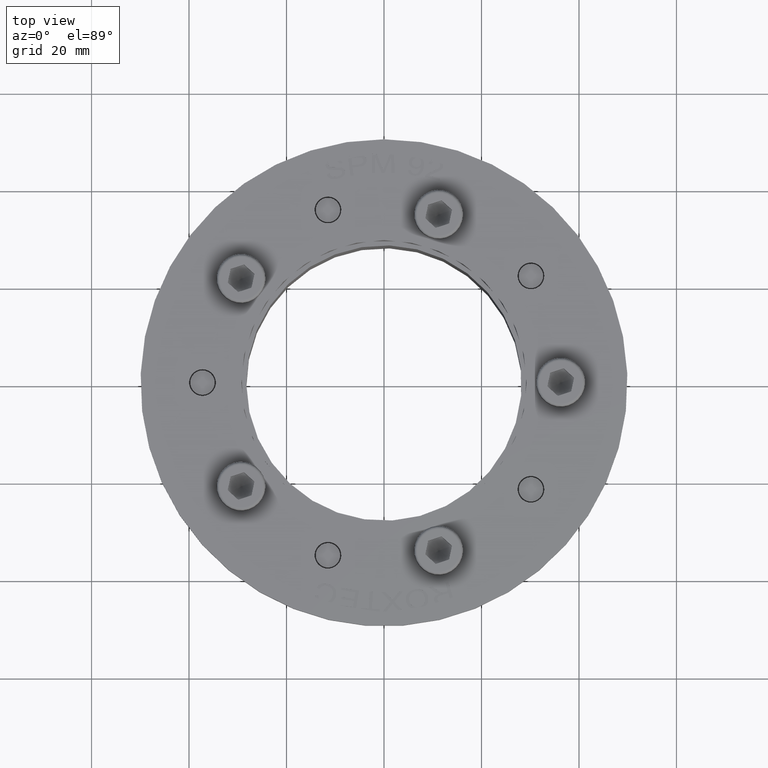
[diagram: clean part render]
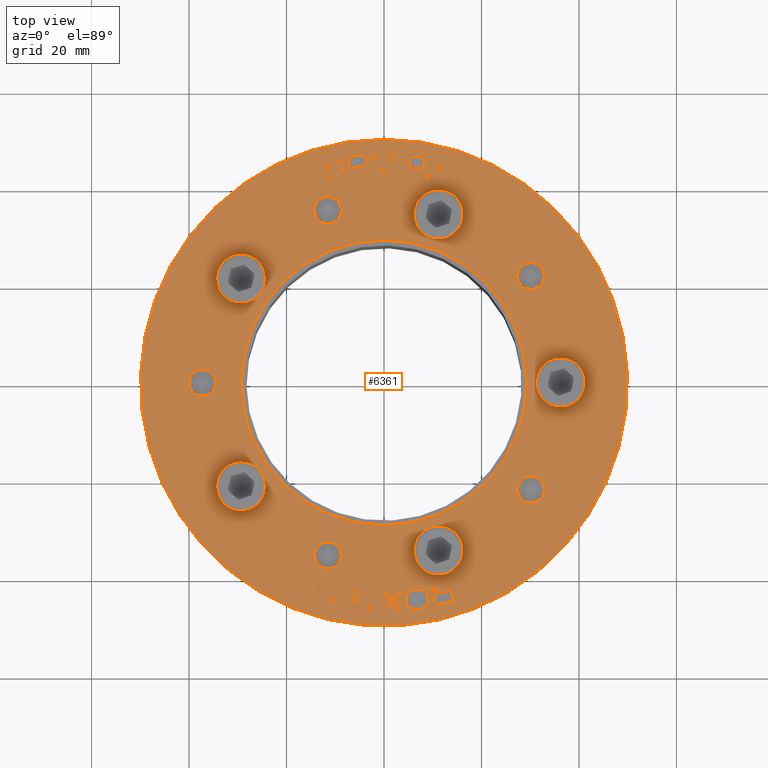
[diagram: same view with one face highlighted and labeled with its STEP entity id]
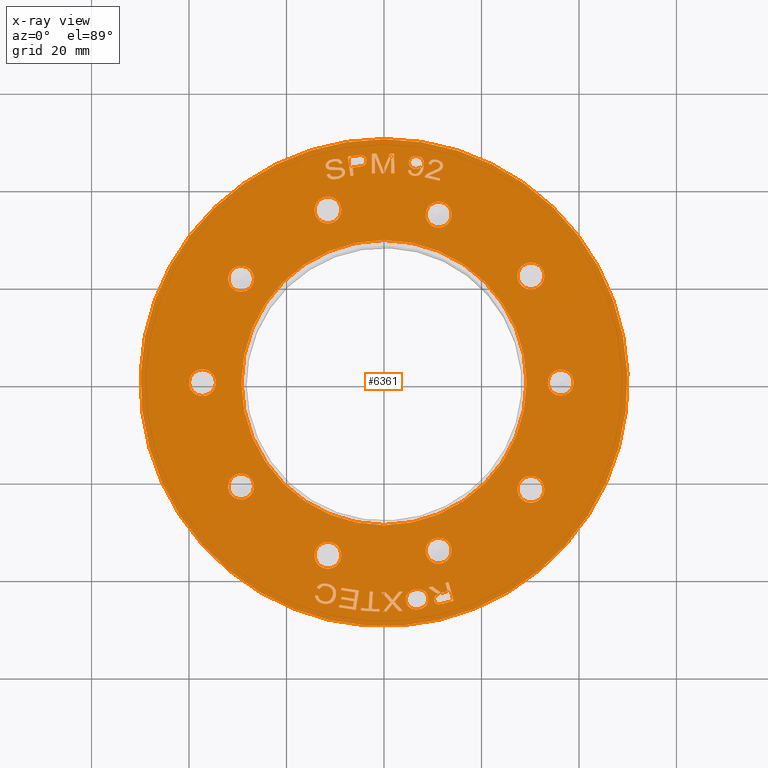
[diagram: x-ray of the same camera — body ghosted, the highlighted face saturated]
A machine part, top view. The second image highlights one B-rep face of the part: STEP entity #6361.
The next image is the same camera in x-ray: the body ghosted, the highlighted face saturated — about 0% of this face is hidden behind the body in this view.
In plain terms, the highlighted planar face has unit normal (0, 0, 1).
Its self-contained STEP definition (entity closure, byte-faithful):
#2977=CARTESIAN_POINT('',(42.942256137040616,-0.999999999999991,-1.867385374601689));
#2978=VERTEX_POINT('',#2977);
#2979=CARTESIAN_POINT('',(42.939580579080463,-0.999999999999991,-2.480184420897977));
#2980=VERTEX_POINT('',#2979);
#2981=CARTESIAN_POINT('',(42.942256137040609,-0.999999999999991,-1.867385374601689));
#2982=DIRECTION('',(-0.004366084566433,0.0,-0.999990468607356));
#2983=VECTOR('',#2982,0.612804887180283);
#2984=LINE('',#2981,#2983);
#2985=EDGE_CURVE('',#2978,#2980,#2984,.T.);
#3017=CARTESIAN_POINT('',(46.347711533622501,-0.999999999999991,-1.882254022569327));
#3018=VERTEX_POINT('',#3017);
#3019=CARTESIAN_POINT('',(46.347711533622501,-0.999999999999991,-1.882254022569327));
#3020=DIRECTION('',(-0.999990468607356,0.0,0.00436608456644));
#3021=VECTOR('',#3020,3.405487855623769);
#3022=LINE('',#3019,#3021);
#3023=EDGE_CURVE('',#3018,#2978,#3022,.T.);
#3048=CARTESIAN_POINT('',(42.948299437109831,-0.999999999999991,-0.48325220535534));
#3049=VERTEX_POINT('',#3048);
#3050=CARTESIAN_POINT('',(42.948299437109839,-0.999999999999991,-0.483252205355344));
#3051=DIRECTION('',(0.924750497504952,0.0,-0.380573931535443));
#3052=VECTOR('',#3051,3.676031649276792);
#3053=LINE('',#3050,#3052);
#3054=EDGE_CURVE('',#3049,#3018,#3053,.T.);
#3079=CARTESIAN_POINT('',(42.950801949032765,-0.999999999999991,0.089913071777508));
#3080=VERTEX_POINT('',#3079);
#3081=CARTESIAN_POINT('',(42.950801949032758,-0.999999999999991,0.089913071777508));
#3082=DIRECTION('',(-0.00436608456643,0.0,-0.999990468607356));
#3083=VECTOR('',#3082,0.573170740248225);
#3084=LINE('',#3081,#3083);
#3085=EDGE_CURVE('',#3080,#3049,#3084,.T.);
#3110=CARTESIAN_POINT('',(46.304427612610269,-0.999999999999991,1.471625512391679));
#3111=VERTEX_POINT('',#3110);
#3112=CARTESIAN_POINT('',(46.304427612610276,-0.999999999999991,1.471625512391681));
#3113=DIRECTION('',(-0.924599672851475,0.0,-0.38094021179569));
#3114=VECTOR('',#3113,3.62711102117838);
#3115=LINE('',#3112,#3114);
#3116=EDGE_CURVE('',#3111,#3080,#3115,.T.);
#3141=CARTESIAN_POINT('',(42.956898494036508,-0.999999999999991,1.486241246920299));
#3142=VERTEX_POINT('',#3141);
#3143=CARTESIAN_POINT('',(42.956898494036516,-0.999999999999991,1.486241246920299));
#3144=DIRECTION('',(0.999990468607356,0.0,-0.004366084566441));
#3145=VECTOR('',#3144,3.347561025492302);
#3146=LINE('',#3143,#3145);
#3147=EDGE_CURVE('',#3142,#3111,#3146,.T.);
#3172=CARTESIAN_POINT('',(42.959574051996661,-0.999999999999991,2.099040293216588));
#3173=VERTEX_POINT('',#3172);
#3174=CARTESIAN_POINT('',(42.959574051996661,-0.999999999999991,2.099040293216588));
#3175=DIRECTION('',(-0.004366084566433,0.0,-0.999990468607356));
#3176=VECTOR('',#3175,0.612804887180283);
#3177=LINE('',#3174,#3176);
#3178=EDGE_CURVE('',#3173,#3142,#3177,.T.);
#3203=CARTESIAN_POINT('',(46.959535986030161,-0.999999999999991,2.081575954690589));
#3204=VERTEX_POINT('',#3203);
#3205=CARTESIAN_POINT('',(46.959535986030161,-0.999999999999991,2.081575954690589));
#3206=DIRECTION('',(-0.999990468607356,0.0,0.00436608456644));
#3207=VECTOR('',#3206,4.000000059604646);
#3208=LINE('',#3205,#3207);
#3209=EDGE_CURVE('',#3204,#3173,#3208,.T.);
#3234=CARTESIAN_POINT('',(46.955822151846661,-0.999999999999991,1.230974293413647));
#3235=VERTEX_POINT('',#3234);
#3236=CARTESIAN_POINT('',(46.955822151846661,-0.999999999999991,1.230974293413647));
#3237=DIRECTION('',(0.004366084566439,0.0,0.999990468607356));
#3238=VECTOR('',#3237,0.850609768772635);
#3239=LINE('',#3236,#3238);
#3240=EDGE_CURVE('',#3235,#3204,#3239,.T.);
#3265=CARTESIAN_POINT('',(44.167280409670283,-0.999999999999991,0.090699392506322));
#3266=VERTEX_POINT('',#3265);
#3267=CARTESIAN_POINT('',(44.167280409670283,-0.999999999999991,0.090699392506318));
#3268=DIRECTION('',(0.925604196858204,0.0,0.378492893933927));
#3269=VECTOR('',#3268,3.012671886797379);
#3270=LINE('',#3267,#3269);
#3271=EDGE_CURVE('',#3266,#3235,#3270,.T.);
#3298=CARTESIAN_POINT('',(43.525924456481846,-0.999999999999991,-0.162600372256154));
#3299=VERTEX_POINT('',#3298);
#3300=CARTESIAN_POINT('',(43.525924456481846,-0.999999999999991,-0.162600372256154));
#3301=CARTESIAN_POINT('',(43.742731903218171,-0.999999999999991,-0.084277931517187));
#3302=CARTESIAN_POINT('',(44.167280409670283,-0.999999999999991,0.090699392506322));
#3303=QUASI_UNIFORM_CURVE('',2,(#3300,#3301,#3302),.UNSPECIFIED.,.F.,.U.);
#3304=EDGE_CURVE('',#3299,#3266,#3303,.T.);
#3331=CARTESIAN_POINT('',(44.116370588703276,-0.999999999999991,-0.396887863613307));
#3332=VERTEX_POINT('',#3331);
#3333=CARTESIAN_POINT('',(44.116370588703276,-0.999999999999991,-0.396887863613307));
#3334=CARTESIAN_POINT('',(43.720725081217758,-0.999999999999991,-0.236622326587304));
#3335=CARTESIAN_POINT('',(43.525924456481846,-0.999999999999991,-0.162600372256154));
#3336=QUASI_UNIFORM_CURVE('',2,(#3333,#3334,#3335),.UNSPECIFIED.,.F.,.U.);
#3337=EDGE_CURVE('',#3332,#3299,#3336,.T.);
#3362=CARTESIAN_POINT('',(46.943708929240977,-0.999999999999991,-1.543389548027268));
#3363=VERTEX_POINT('',#3362);
#3364=CARTESIAN_POINT('',(46.943708929240969,-0.999999999999991,-1.543389548027266));
#3365=DIRECTION('',(-0.926706918255092,0.0,0.375784895463016));
#3366=VECTOR('',#3365,3.050952016049817);
#3367=LINE('',#3364,#3366);
#3368=EDGE_CURVE('',#3363,#3332,#3367,.T.);
#3393=CARTESIAN_POINT('',(46.939542513113963,-0.999999999999991,-2.497648759423976));
#3394=VERTEX_POINT('',#3393);
#3395=CARTESIAN_POINT('',(46.939542513113956,-0.999999999999991,-2.497648759423976));
#3396=DIRECTION('',(0.004366084566443,0.0,0.999990468607356));
#3397=VECTOR('',#3396,0.95426830690263);
#3398=LINE('',#3395,#3397);
#3399=EDGE_CURVE('',#3394,#3363,#3398,.T.);
#3424=CARTESIAN_POINT('',(42.939580579080463,-0.999999999999991,-2.480184420897977));
#3425=DIRECTION('',(0.999990468607356,0.0,-0.00436608456644));
#3426=VECTOR('',#3425,4.000000059604646);
#3427=LINE('',#3424,#3426);
#3428=EDGE_CURVE('',#2980,#3394,#3427,.T.);
#3669=CARTESIAN_POINT('',(42.504008988835871,-0.999999999999991,-6.267625546338094));
#3670=VERTEX_POINT('',#3669);
#3671=CARTESIAN_POINT('',(42.427331917522721,-0.999999999999991,-6.897119169110413));
#3672=VERTEX_POINT('',#3671);
#3673=CARTESIAN_POINT('',(42.504008988835885,-0.999999999999991,-6.267625546338094));
#3674=DIRECTION('',(-0.120913841422826,0.0,-0.992663005733756));
#3675=VECTOR('',#3674,0.634146350912927);
#3676=LINE('',#3673,#3675);
#3677=EDGE_CURVE('',#3670,#3672,#3676,.T.);
#3709=CARTESIAN_POINT('',(44.117086397189951,-0.999999999999991,-6.464110541578041));
#3710=VERTEX_POINT('',#3709);
#3711=CARTESIAN_POINT('',(44.117086397189944,-0.999999999999991,-6.464110541578041));
#3712=DIRECTION('',(-0.992663005733756,0.0,0.120913841422826));
#3713=VECTOR('',#3712,1.625000024214387);
#3714=LINE('',#3711,#3713);
#3715=EDGE_CURVE('',#3710,#3670,#3714,.T.);
#3740=CARTESIAN_POINT('',(44.265648222859191,-0.999999999999991,-5.244466647456658));
#3741=VERTEX_POINT('',#3740);
#3742=CARTESIAN_POINT('',(44.265648222859184,-0.999999999999991,-5.244466647456656));
#3743=DIRECTION('',(-0.12091384142283,0.0,-0.992663005733756));
#3744=VECTOR('',#3743,1.228658554893812);
#3745=LINE('',#3742,#3744);
#3746=EDGE_CURVE('',#3741,#3710,#3745,.T.);
#3775=CARTESIAN_POINT('',(45.690315292520722,-0.999999999999991,-3.608997453423247));
#3776=VERTEX_POINT('',#3775);
#3777=CARTESIAN_POINT('',(45.690315292520729,-0.999999999999991,-3.608997453423246));
#3778=CARTESIAN_POINT('',(45.184904547314105,-0.999999999999991,-3.547434612513163));
#3779=CARTESIAN_POINT('',(44.388773904679333,-0.999999999999991,-4.233645157043409));
#3780=CARTESIAN_POINT('',(44.265648222859184,-0.999999999999991,-5.244466647456658));
#3781=QUASI_UNIFORM_CURVE('',2,(#3777,#3778,#3779,#3780),.UNSPECIFIED.,.F.,.U.);
#3782=EDGE_CURVE('',#3776,#3741,#3781,.T.);
#3814=CARTESIAN_POINT('',(46.66534893345441,-0.999999999999991,-4.858007733962379));
#3815=VERTEX_POINT('',#3814);
#3816=CARTESIAN_POINT('',(46.66534893345441,-0.999999999999991,-4.85800773396238));
#3817=CARTESIAN_POINT('',(46.659688559935013,-0.999999999999991,-4.501045746546035));
#3818=CARTESIAN_POINT('',(46.44518795487086,-0.999999999999991,-3.992721538885276));
#3819=CARTESIAN_POINT('',(45.986903634019228,-0.999999999999991,-3.645124150484245));
#3820=CARTESIAN_POINT('',(45.690315292520729,-0.999999999999991,-3.608997453423246));
#3821=QUASI_UNIFORM_CURVE('',2,(#3816,#3817,#3818,#3819,#3820),.UNSPECIFIED.,.F.,.U.);
#3822=EDGE_CURVE('',#3815,#3776,#3821,.T.);
#3851=CARTESIAN_POINT('',(46.616587380820732,-0.999999999999991,-5.586112434778041));
#3852=VERTEX_POINT('',#3851);
#3853=CARTESIAN_POINT('',(46.616587380820732,-0.999999999999991,-5.586112434778041));
#3854=CARTESIAN_POINT('',(46.67446382407153,-0.999999999999991,-5.110965806050851));
#3855=CARTESIAN_POINT('',(46.66534893345441,-0.999999999999991,-4.85800773396238));
#3856=QUASI_UNIFORM_CURVE('',2,(#3853,#3854,#3855),.UNSPECIFIED.,.F.,.U.);
#3857=EDGE_CURVE('',#3852,#3815,#3856,.T.);
#3882=CARTESIAN_POINT('',(46.397983999625069,-0.999999999999991,-7.380774542008748));
#3883=VERTEX_POINT('',#3882);
#3884=CARTESIAN_POINT('',(46.397983999625083,-0.999999999999991,-7.380774542008749));
#3885=DIRECTION('',(0.120913841422826,0.0,0.992663005733756));
#3886=VECTOR('',#3885,1.807926856208497);
#3887=LINE('',#3884,#3886);
#3888=EDGE_CURVE('',#3883,#3852,#3887,.T.);
#3913=CARTESIAN_POINT('',(42.427331917522721,-0.999999999999991,-6.897119169110414));
#3914=DIRECTION('',(0.992663005733756,0.0,-0.120913841422827));
#3915=VECTOR('',#3914,4.000000059604634);
#3916=LINE('',#3913,#3915);
#3917=EDGE_CURVE('',#3672,#3883,#3916,.T.);
#3965=CARTESIAN_POINT('',(41.824809856961863,-0.999999999999991,-9.467985012987521));
#3966=VERTEX_POINT('',#3965);
#3967=CARTESIAN_POINT('',(42.688881047306623,-0.999999999999991,-11.758373635295779));
#3968=VERTEX_POINT('',#3967);
#3969=CARTESIAN_POINT('',(41.824809856961863,-0.999999999999991,-9.467985012987521));
#3970=CARTESIAN_POINT('',(41.679812935340728,-0.999999999999991,-10.100980742960433));
#3971=CARTESIAN_POINT('',(41.79282909726701,-0.999999999999991,-11.027658912353836));
#3972=CARTESIAN_POINT('',(42.299324950264662,-0.999999999999991,-11.656629144338586));
#3973=CARTESIAN_POINT('',(42.688881047306623,-0.999999999999991,-11.758373635295779));
#3974=QUASI_UNIFORM_CURVE('',2,(#3969,#3970,#3971,#3972,#3973),.UNSPECIFIED.,.F.,.U.);
#3975=EDGE_CURVE('',#3966,#3968,#3974,.T.);
#4015=CARTESIAN_POINT('',(43.38823959095825,-0.999999999999991,-8.008892388963327));
#4016=VERTEX_POINT('',#4015);
#4017=CARTESIAN_POINT('',(43.38823959095825,-0.999999999999991,-8.008892388963327));
#4018=CARTESIAN_POINT('',(43.076199442380059,-0.999999999999991,-7.937415033234601));
#4019=CARTESIAN_POINT('',(42.428388330838125,-0.999999999999991,-8.239419515000757));
#4020=CARTESIAN_POINT('',(41.939854362849047,-0.999999999999991,-8.965748964323579));
#4021=CARTESIAN_POINT('',(41.824809856961863,-0.999999999999991,-9.467985012987521));
#4022=QUASI_UNIFORM_CURVE('',2,(#4017,#4018,#4019,#4020,#4021),.UNSPECIFIED.,.F.,.U.);
#4023=EDGE_CURVE('',#4016,#3966,#4022,.T.);
#4054=CARTESIAN_POINT('',(44.156781650098473,-0.999999999999991,-9.023173471364743));
#4055=VERTEX_POINT('',#4054);
#4056=CARTESIAN_POINT('',(44.156781650098473,-0.999999999999991,-9.023173471364743));
#4057=CARTESIAN_POINT('',(44.092536601147913,-0.999999999999991,-8.579956326518694));
#4058=CARTESIAN_POINT('',(43.700279739536441,-0.999999999999991,-8.080369744692053));
#4059=CARTESIAN_POINT('',(43.38823959095825,-0.999999999999991,-8.008892388963327));
#4060=QUASI_UNIFORM_CURVE('',2,(#4056,#4057,#4058,#4059),.UNSPECIFIED.,.F.,.U.);
#4061=EDGE_CURVE('',#4055,#4016,#4060,.T.);
#4091=CARTESIAN_POINT('',(44.232825213542768,-0.999999999999991,-11.108030901594946));
#4092=VERTEX_POINT('',#4091);
#4093=CARTESIAN_POINT('',(44.232825213542775,-0.999999999999991,-11.108030901594947));
#4094=CARTESIAN_POINT('',(44.139937924568535,-0.999999999999991,-10.899089092809371));
#4095=CARTESIAN_POINT('',(44.19909685538024,-0.999999999999991,-9.330002032518671));
#4096=CARTESIAN_POINT('',(44.156781650098473,-0.999999999999991,-9.023173471364743));
#4097=QUASI_UNIFORM_CURVE('',2,(#4093,#4094,#4095,#4096),.UNSPECIFIED.,.F.,.U.);
#4098=EDGE_CURVE('',#4092,#4055,#4097,.T.);
#4126=CARTESIAN_POINT('',(44.539002153392261,-0.999999999999991,-11.368957565247616));
#4127=VERTEX_POINT('',#4126);
#4128=CARTESIAN_POINT('',(44.539002153392261,-0.999999999999991,-11.368957565247616));
#4129=CARTESIAN_POINT('',(44.328003576734631,-0.999999999999991,-11.320625258040572));
#4130=CARTESIAN_POINT('',(44.232825213542775,-0.999999999999991,-11.108030901594947));
#4131=QUASI_UNIFORM_CURVE('',2,(#4128,#4129,#4130),.UNSPECIFIED.,.F.,.U.);
#4132=EDGE_CURVE('',#4127,#4092,#4131,.T.);
#4161=CARTESIAN_POINT('',(45.370194864706299,-0.999999999999991,-10.430238950407904));
#4162=VERTEX_POINT('',#4161);
#4163=CARTESIAN_POINT('',(45.370194864706299,-0.999999999999991,-10.430238950407906));
#4164=CARTESIAN_POINT('',(45.241535624394594,-0.999999999999991,-10.99191121784866));
#4165=CARTESIAN_POINT('',(44.779718839438296,-0.999999999999991,-11.424097239666917));
#4166=CARTESIAN_POINT('',(44.539002153392261,-0.999999999999991,-11.368957565247616));
#4167=QUASI_UNIFORM_CURVE('',2,(#4163,#4164,#4165,#4166),.UNSPECIFIED.,.F.,.U.);
#4168=EDGE_CURVE('',#4162,#4127,#4167,.T.);
#4198=CARTESIAN_POINT('',(44.881339935626968,-0.999999999999991,-9.123461518022111));
#4199=VERTEX_POINT('',#4198);
#4200=CARTESIAN_POINT('',(44.881339935626968,-0.999999999999991,-9.123461518022111));
#4201=CARTESIAN_POINT('',(45.241924515442342,-0.999999999999991,-9.256102583196796));
#4202=CARTESIAN_POINT('',(45.493408211248209,-0.999999999999991,-9.892341170477881));
#4203=CARTESIAN_POINT('',(45.370194864706299,-0.999999999999991,-10.430238950407906));
#4204=QUASI_UNIFORM_CURVE('',2,(#4200,#4201,#4202,#4203),.UNSPECIFIED.,.F.,.U.);
#4205=EDGE_CURVE('',#4199,#4162,#4204,.T.);
#4231=CARTESIAN_POINT('',(45.056120822077077,-0.999999999999991,-8.537948907630067));
#4232=VERTEX_POINT('',#4231);
#4233=CARTESIAN_POINT('',(45.056120822077069,-0.999999999999991,-8.537948907630065));
#4234=DIRECTION('',(-0.286037033172066,0.0,-0.958218563613815));
#4235=VECTOR('',#4234,0.611042858723012);
#4236=LINE('',#4233,#4235);
#4237=EDGE_CURVE('',#4232,#4199,#4236,.T.);
#4268=CARTESIAN_POINT('',(45.818755307857771,-0.999999999999991,-10.561137967205045));
#4269=VERTEX_POINT('',#4268);
#4270=CARTESIAN_POINT('',(45.818755307857785,-0.999999999999991,-10.561137967205045));
#4271=CARTESIAN_POINT('',(45.937884234072328,-0.999999999999991,-10.041071052908057));
#4272=CARTESIAN_POINT('',(45.8402907103887,-0.999999999999991,-9.183608280442552));
#4273=CARTESIAN_POINT('',(45.394475396437535,-0.999999999999991,-8.631092685265243));
#4274=CARTESIAN_POINT('',(45.056120822077077,-0.999999999999991,-8.537948907630067));
#4275=QUASI_UNIFORM_CURVE('',2,(#4270,#4271,#4272,#4273,#4274),.UNSPECIFIED.,.F.,.U.);
#4276=EDGE_CURVE('',#4269,#4232,#4275,.T.);
#4309=CARTESIAN_POINT('',(44.366512341159762,-0.999999999999991,-11.95812272329974));
#4310=VERTEX_POINT('',#4309);
#4311=CARTESIAN_POINT('',(44.366512341159762,-0.999999999999991,-11.958122723299738));
#4312=CARTESIAN_POINT('',(44.663693435043754,-0.999999999999991,-12.026196395422332));
#4313=CARTESIAN_POINT('',(45.266744373889729,-0.999999999999991,-11.742088634729804));
#4314=CARTESIAN_POINT('',(45.711198905904084,-0.999999999999991,-11.03068409554175));
#4315=CARTESIAN_POINT('',(45.818755307857785,-0.999999999999991,-10.561137967205045));
#4316=QUASI_UNIFORM_CURVE('',2,(#4311,#4312,#4313,#4314,#4315),.UNSPECIFIED.,.F.,.U.);
#4317=EDGE_CURVE('',#4310,#4269,#4316,.T.);
#4348=CARTESIAN_POINT('',(43.671350512423771,-0.999999999999991,-11.101398918389025));
#4349=VERTEX_POINT('',#4348);
#4350=CARTESIAN_POINT('',(43.671350512423771,-0.999999999999991,-11.101398918389025));
#4351=CARTESIAN_POINT('',(43.740726735649616,-0.999999999999991,-11.467597842879167));
#4352=CARTESIAN_POINT('',(44.099049356664167,-0.999999999999991,-11.896856418389401));
#4353=CARTESIAN_POINT('',(44.366512341159762,-0.999999999999991,-11.958122723299738));
#4354=QUASI_UNIFORM_CURVE('',2,(#4350,#4351,#4352,#4353),.UNSPECIFIED.,.F.,.U.);
#4355=EDGE_CURVE('',#4349,#4310,#4354,.T.);
#4385=CARTESIAN_POINT('',(43.631363812889035,-0.999999999999991,-9.268764843025119));
#4386=VERTEX_POINT('',#4385);
#4387=CARTESIAN_POINT('',(43.631363812889035,-0.999999999999991,-9.268764843025119));
#4388=CARTESIAN_POINT('',(43.650885429167445,-0.999999999999991,-9.47028440331778));
#4389=CARTESIAN_POINT('',(43.614673980555672,-0.999999999999991,-10.816302634582136));
#4390=CARTESIAN_POINT('',(43.671350512423771,-0.999999999999991,-11.101398918389025));
#4391=QUASI_UNIFORM_CURVE('',2,(#4387,#4388,#4389,#4390),.UNSPECIFIED.,.F.,.U.);
#4392=EDGE_CURVE('',#4386,#4349,#4391,.T.);
#4422=CARTESIAN_POINT('',(43.206834345909222,-0.999999999999991,-8.596015336851771));
#4423=VERTEX_POINT('',#4422);
#4424=CARTESIAN_POINT('',(43.206834345909229,-0.999999999999991,-8.596015336851771));
#4425=CARTESIAN_POINT('',(43.391086624117307,-0.999999999999991,-8.63822101356778));
#4426=CARTESIAN_POINT('',(43.605949872465146,-0.999999999999991,-8.956424532660808));
#4427=CARTESIAN_POINT('',(43.631363812889035,-0.999999999999991,-9.268764843025119));
#4428=QUASI_UNIFORM_CURVE('',2,(#4424,#4425,#4426,#4427),.UNSPECIFIED.,.F.,.U.);
#4429=EDGE_CURVE('',#4423,#4386,#4428,.T.);
#4461=CARTESIAN_POINT('',(42.27863318526979,-0.999999999999991,-9.603217314165949));
#4462=VERTEX_POINT('',#4461);
#4463=CARTESIAN_POINT('',(42.278633185269797,-0.999999999999991,-9.603217314165949));
#4464=CARTESIAN_POINT('',(42.359640855095684,-0.999999999999991,-9.249571812444003));
#4465=CARTESIAN_POINT('',(42.658871783750371,-0.999999999999991,-8.748865688127467));
#4466=CARTESIAN_POINT('',(43.025553878639997,-0.999999999999991,-8.554490396856984));
#4467=CARTESIAN_POINT('',(43.206834345909229,-0.999999999999991,-8.596015336851771));
#4468=QUASI_UNIFORM_CURVE('',2,(#4463,#4464,#4465,#4466,#4467),.UNSPECIFIED.,.F.,.U.);
#4469=EDGE_CURVE('',#4462,#4423,#4468,.T.);
#4502=CARTESIAN_POINT('',(42.863910797810675,-0.999999999999991,-11.18542900538031));
#4503=VERTEX_POINT('',#4502);
#4504=CARTESIAN_POINT('',(42.863910797810675,-0.999999999999991,-11.18542900538031));
#4505=CARTESIAN_POINT('',(42.579231828962676,-0.999999999999991,-11.076430716835182));
#4506=CARTESIAN_POINT('',(42.274218796233896,-0.999999999999991,-10.687533174199032));
#4507=CARTESIAN_POINT('',(42.188095201346734,-0.999999999999991,-9.998468169031668));
#4508=CARTESIAN_POINT('',(42.278633185269797,-0.999999999999991,-9.603217314165949));
#4509=QUASI_UNIFORM_CURVE('',2,(#4504,#4505,#4506,#4507,#4508),.UNSPECIFIED.,.F.,.U.);
#4510=EDGE_CURVE('',#4503,#4462,#4509,.T.);
#4537=CARTESIAN_POINT('',(42.688881047306637,-0.999999999999991,-11.758373635295785));
#4538=DIRECTION('',(0.292162560632079,0.0,0.956368672722453));
#4539=VECTOR('',#4538,0.599083435349773);
#4540=LINE('',#4537,#4539);
#4541=EDGE_CURVE('',#3968,#4503,#4540,.T.);
#4735=CARTESIAN_POINT('',(42.441505981402315,-0.999999999999991,6.138916910177903));
#4736=VERTEX_POINT('',#4735);
#4737=CARTESIAN_POINT('',(43.6222241787328,-0.999999999999991,4.95162281715114));
#4738=VERTEX_POINT('',#4737);
#4739=CARTESIAN_POINT('',(42.441505981402315,-0.999999999999991,6.138916910177903));
#4740=CARTESIAN_POINT('',(42.524192694853014,-0.999999999999991,5.580986421954197));
#4741=CARTESIAN_POINT('',(43.144041979827449,-0.999999999999991,4.954724931380925));
#4742=CARTESIAN_POINT('',(43.6222241787328,-0.999999999999991,4.95162281715114));
#4743=QUASI_UNIFORM_CURVE('',2,(#4739,#4740,#4741,#4742),.UNSPECIFIED.,.F.,.U.);
#4744=EDGE_CURVE('',#4736,#4738,#4743,.T.);
#4783=CARTESIAN_POINT('',(44.316037735591337,-0.999999999999991,8.151938520192459));
#4784=VERTEX_POINT('',#4783);
#4785=CARTESIAN_POINT('',(44.316037735591337,-0.999999999999991,8.151938520192461));
#4786=CARTESIAN_POINT('',(43.556045935416343,-0.999999999999991,8.039305807816373));
#4787=CARTESIAN_POINT('',(42.71889244600878,-0.999999999999991,7.511485008615484));
#4788=CARTESIAN_POINT('',(42.36373577523787,-0.999999999999991,6.66367315315588));
#4789=CARTESIAN_POINT('',(42.441505981402315,-0.999999999999991,6.138916910177903));
#4790=QUASI_UNIFORM_CURVE('',2,(#4785,#4786,#4787,#4788,#4789),.UNSPECIFIED.,.F.,.U.);
#4791=EDGE_CURVE('',#4784,#4736,#4790,.T.);
#4824=CARTESIAN_POINT('',(46.469436410170879,-0.999999999999991,6.8067542644462));
#4825=VERTEX_POINT('',#4824);
#4826=CARTESIAN_POINT('',(46.469436410170871,-0.999999999999991,6.8067542644462));
#4827=CARTESIAN_POINT('',(46.40060530816325,-0.999999999999991,7.271193697886478));
#4828=CARTESIAN_POINT('',(45.870892699561352,-0.999999999999991,7.975537360333114));
#4829=CARTESIAN_POINT('',(45.042855290520613,-0.999999999999991,8.259654725282299));
#4830=CARTESIAN_POINT('',(44.316037735591337,-0.999999999999991,8.151938520192461));
#4831=QUASI_UNIFORM_CURVE('',2,(#4826,#4827,#4828,#4829,#4830),.UNSPECIFIED.,.F.,.U.);
#4832=EDGE_CURVE('',#4825,#4784,#4831,.T.);
#4863=CARTESIAN_POINT('',(45.354214951584602,-0.999999999999991,5.118927911791208));
#4864=VERTEX_POINT('',#4863);
#4865=CARTESIAN_POINT('',(45.354214951584609,-0.999999999999991,5.118927911791209));
#4866=CARTESIAN_POINT('',(45.957383046961596,-0.999999999999991,5.208318953359532));
#4867=CARTESIAN_POINT('',(46.564190914233293,-0.999999999999991,6.167396083346599));
#4868=CARTESIAN_POINT('',(46.469436410170871,-0.999999999999991,6.8067542644462));
#4869=QUASI_UNIFORM_CURVE('',2,(#4865,#4866,#4867,#4868),.UNSPECIFIED.,.F.,.U.);
#4870=EDGE_CURVE('',#4864,#4825,#4869,.T.);
#4900=CARTESIAN_POINT('',(43.852138260146781,-0.999999999999991,6.332565789855522));
#4901=VERTEX_POINT('',#4900);
#4902=CARTESIAN_POINT('',(43.852138260146781,-0.999999999999991,6.332565789855522));
#4903=CARTESIAN_POINT('',(43.939741480883747,-0.999999999999991,5.74146105638607));
#4904=CARTESIAN_POINT('',(44.772157739545825,-0.999999999999991,5.032665556677776));
#4905=CARTESIAN_POINT('',(45.354214951584609,-0.999999999999991,5.118927911791209));
#4906=QUASI_UNIFORM_CURVE('',2,(#4902,#4903,#4904,#4905),.UNSPECIFIED.,.F.,.U.);
#4907=EDGE_CURVE('',#4901,#4864,#4906,.T.);
#4937=CARTESIAN_POINT('',(44.206270459707255,-0.999999999999991,7.540829219643976));
#4938=VERTEX_POINT('',#4937);
#4939=CARTESIAN_POINT('',(44.206270459707255,-0.999999999999991,7.540829219643976));
#4940=CARTESIAN_POINT('',(43.999974145041932,-0.999999999999991,7.331494920980841));
#4941=CARTESIAN_POINT('',(43.800291456037151,-0.999999999999991,6.682403285174168));
#4942=CARTESIAN_POINT('',(43.852138260146781,-0.999999999999991,6.332565789855522));
#4943=QUASI_UNIFORM_CURVE('',2,(#4939,#4940,#4941,#4942),.UNSPECIFIED.,.F.,.U.);
#4944=EDGE_CURVE('',#4938,#4901,#4943,.T.);
#4972=CARTESIAN_POINT('',(44.109316609239102,-0.999999999999991,7.529542493469919));
#4973=VERTEX_POINT('',#4972);
#4974=CARTESIAN_POINT('',(44.109316609239102,-0.999999999999991,7.529542493469918));
#4975=CARTESIAN_POINT('',(44.139475014007949,-0.999999999999991,7.534012045548337));
#4976=CARTESIAN_POINT('',(44.206270459707255,-0.999999999999991,7.540829219643976));
#4977=QUASI_UNIFORM_CURVE('',2,(#4974,#4975,#4976),.UNSPECIFIED.,.F.,.U.);
#4978=EDGE_CURVE('',#4973,#4938,#4977,.T.);
#5011=CARTESIAN_POINT('',(42.83780910351976,-0.999999999999991,6.209978359520544));
#5012=VERTEX_POINT('',#5011);
#5013=CARTESIAN_POINT('',(42.83780910351976,-0.999999999999991,6.209978359520543));
#5014=CARTESIAN_POINT('',(42.798030090021854,-0.999999999999991,6.478388161963302));
#5015=CARTESIAN_POINT('',(42.94276828939141,-0.999999999999991,6.915919580475984));
#5016=CARTESIAN_POINT('',(43.248582911089748,-0.999999999999991,7.223218914705152));
#5017=CARTESIAN_POINT('',(43.804716721073724,-0.999999999999991,7.484400017477917));
#5018=CARTESIAN_POINT('',(44.109316609239102,-0.999999999999991,7.529542493469918));
#5019=QUASI_UNIFORM_CURVE('',2,(#5013,#5014,#5015,#5016,#5017,#5018),.UNSPECIFIED.,.F.,.U.);
#5020=EDGE_CURVE('',#5012,#4973,#5019,.T.);
#5052=CARTESIAN_POINT('',(43.581312276750651,-0.999999999999991,5.518826518761513));
#5053=VERTEX_POINT('',#5052);
#5054=CARTESIAN_POINT('',(43.581312276750651,-0.999999999999991,5.518826518761513));
#5055=CARTESIAN_POINT('',(43.241858739781989,-0.999999999999991,5.542488572552022));
#5056=CARTESIAN_POINT('',(42.883845489927452,-0.999999999999991,5.899346790401401));
#5057=CARTESIAN_POINT('',(42.83780910351976,-0.999999999999991,6.209978359520543));
#5058=QUASI_UNIFORM_CURVE('',2,(#5054,#5055,#5056,#5057),.UNSPECIFIED.,.F.,.U.);
#5059=EDGE_CURVE('',#5053,#5012,#5058,.T.);
#5085=CARTESIAN_POINT('',(43.622224178732807,-0.999999999999991,4.951622817151141));
#5086=DIRECTION('',(-0.071942215843775,0.0,0.997408801635261));
#5087=VECTOR('',#5086,0.568677257189266);
#5088=LINE('',#5085,#5087);
#5089=EDGE_CURVE('',#4738,#5053,#5088,.T.);
#5131=CARTESIAN_POINT('',(42.435925696203554,-0.999999999999991,9.242243952120205));
#5132=VERTEX_POINT('',#5131);
#5133=CARTESIAN_POINT('',(41.891300104621649,-0.999999999999991,11.528889826566854));
#5134=VERTEX_POINT('',#5133);
#5135=CARTESIAN_POINT('',(42.435925696203569,-0.999999999999991,9.242243952120209));
#5136=DIRECTION('',(-0.231695449256764,0.0,0.972788373076954));
#5137=VECTOR('',#5136,2.350609791124383);
#5138=LINE('',#5135,#5137);
#5139=EDGE_CURVE('',#5132,#5134,#5138,.T.);
#5175=CARTESIAN_POINT('',(42.967863380935171,-0.999999999999991,10.324828440816527));
#5176=VERTEX_POINT('',#5175);
#5177=CARTESIAN_POINT('',(42.967863380935171,-0.999999999999991,10.324828440816528));
#5178=CARTESIAN_POINT('',(42.731910984213002,-0.999999999999991,9.723303046866949));
#5179=CARTESIAN_POINT('',(42.543817265003867,-0.999999999999991,9.368231233588293));
#5180=CARTESIAN_POINT('',(42.435925696203554,-0.999999999999991,9.242243952120205));
#5181=QUASI_UNIFORM_CURVE('',2,(#5177,#5178,#5179,#5180),.UNSPECIFIED.,.F.,.U.);
#5182=EDGE_CURVE('',#5176,#5132,#5181,.T.);
#5214=CARTESIAN_POINT('',(44.259435849098423,-0.999999999999991,12.086656273173169));
#5215=VERTEX_POINT('',#5214);
#5216=CARTESIAN_POINT('',(44.259435849098416,-0.999999999999991,12.086656273173165));
#5217=CARTESIAN_POINT('',(44.025136206969648,-0.999999999999991,12.03085157572184));
#5218=CARTESIAN_POINT('',(43.628723752541518,-0.999999999999991,11.695112506652009));
#5219=CARTESIAN_POINT('',(43.256909840720674,-0.999999999999991,11.045557758387798));
#5220=CARTESIAN_POINT('',(42.967863380935171,-0.999999999999991,10.324828440816528));
#5221=QUASI_UNIFORM_CURVE('',2,(#5216,#5217,#5218,#5219,#5220),.UNSPECIFIED.,.F.,.U.);
#5222=EDGE_CURVE('',#5215,#5176,#5221,.T.);
#5253=CARTESIAN_POINT('',(45.685124095756926,-0.999999999999991,10.890530769745098));
#5254=VERTEX_POINT('',#5253);
#5255=CARTESIAN_POINT('',(45.685124095756926,-0.999999999999991,10.890530769745098));
#5256=CARTESIAN_POINT('',(45.525480277731624,-0.999999999999991,11.560805695328678));
#5257=CARTESIAN_POINT('',(44.719137678591579,-0.999999999999991,12.196146502349819));
#5258=CARTESIAN_POINT('',(44.259435849098416,-0.999999999999991,12.086656273173165));
#5259=QUASI_UNIFORM_CURVE('',2,(#5255,#5256,#5257,#5258),.UNSPECIFIED.,.F.,.U.);
#5260=EDGE_CURVE('',#5254,#5215,#5259,.T.);
#5290=CARTESIAN_POINT('',(44.92204353918504,-0.999999999999991,9.107276371493768));
#5291=VERTEX_POINT('',#5290);
#5292=CARTESIAN_POINT('',(44.92204353918504,-0.999999999999991,9.107276371493768));
#5293=CARTESIAN_POINT('',(45.456592144815382,-0.999999999999991,9.297274623026301));
#5294=CARTESIAN_POINT('',(45.844061525206897,-0.999999999999991,10.223221662416311));
#5295=CARTESIAN_POINT('',(45.685124095756926,-0.999999999999991,10.890530769745098));
#5296=QUASI_UNIFORM_CURVE('',2,(#5292,#5293,#5294,#5295),.UNSPECIFIED.,.F.,.U.);
#5297=EDGE_CURVE('',#5291,#5254,#5296,.T.);
#5323=CARTESIAN_POINT('',(44.731759690937558,-0.999999999999991,9.682499780162427));
#5324=VERTEX_POINT('',#5323);
#5325=CARTESIAN_POINT('',(44.731759690937565,-0.999999999999991,9.682499780162431));
#5326=DIRECTION('',(0.314062223087387,0.0,-0.949402401529198));
#5327=VECTOR('',#5326,0.605879454004066);
#5328=LINE('',#5325,#5327);
#5329=EDGE_CURVE('',#5324,#5291,#5328,.T.);
#5358=CARTESIAN_POINT('',(45.294202210745915,-0.999999999999991,10.781751997951803));
#5359=VERTEX_POINT('',#5358);
#5360=CARTESIAN_POINT('',(45.294202210745915,-0.999999999999991,10.781751997951803));
#5361=CARTESIAN_POINT('',(45.392390222717225,-0.999999999999991,10.369503260535353));
#5362=CARTESIAN_POINT('',(45.09584894770196,-0.999999999999991,9.772351393183216));
#5363=CARTESIAN_POINT('',(44.731759690937558,-0.999999999999991,9.682499780162427));
#5364=QUASI_UNIFORM_CURVE('',2,(#5360,#5361,#5362,#5363),.UNSPECIFIED.,.F.,.U.);
#5365=EDGE_CURVE('',#5359,#5324,#5364,.T.);
#5395=CARTESIAN_POINT('',(44.41116406003357,-0.999999999999991,11.502249813025159));
#5396=VERTEX_POINT('',#5395);
#5397=CARTESIAN_POINT('',(44.41116406003357,-0.999999999999991,11.502249813025159));
#5398=CARTESIAN_POINT('',(44.695882612493854,-0.999999999999991,11.570063116257145));
#5399=CARTESIAN_POINT('',(45.200252530226592,-0.999999999999991,11.176205825839487));
#5400=CARTESIAN_POINT('',(45.294202210745915,-0.999999999999991,10.781751997951803));
#5401=QUASI_UNIFORM_CURVE('',2,(#5397,#5398,#5399,#5400),.UNSPECIFIED.,.F.,.U.);
#5402=EDGE_CURVE('',#5396,#5359,#5401,.T.);
#5432=CARTESIAN_POINT('',(43.319989651191129,-0.999999999999991,9.872771828122646));
#5433=VERTEX_POINT('',#5432);
#5434=CARTESIAN_POINT('',(43.319989651191129,-0.999999999999991,9.872771828122646));
#5435=CARTESIAN_POINT('',(43.661138188749682,-0.999999999999991,10.756345690608708));
#5436=CARTESIAN_POINT('',(44.141274598847261,-0.999999999999991,11.437968452669836));
#5437=CARTESIAN_POINT('',(44.41116406003357,-0.999999999999991,11.502249813025159));
#5438=QUASI_UNIFORM_CURVE('',2,(#5434,#5435,#5436,#5437),.UNSPECIFIED.,.F.,.U.);
#5439=EDGE_CURVE('',#5433,#5396,#5438,.T.);
#5469=CARTESIAN_POINT('',(42.482167100779371,-0.999999999999991,8.482277952701406));
#5470=VERTEX_POINT('',#5469);
#5471=CARTESIAN_POINT('',(42.482167100779371,-0.999999999999991,8.482277952701406));
#5472=CARTESIAN_POINT('',(42.714903564187964,-0.999999999999991,8.663072877522517));
#5473=CARTESIAN_POINT('',(43.10140630332932,-0.999999999999991,9.303589907068881));
#5474=CARTESIAN_POINT('',(43.319989651191129,-0.999999999999991,9.872771828122646));
#5475=QUASI_UNIFORM_CURVE('',2,(#5471,#5472,#5473,#5474),.UNSPECIFIED.,.F.,.U.);
#5476=EDGE_CURVE('',#5470,#5433,#5475,.T.);
#5504=CARTESIAN_POINT('',(42.1655360048997,-0.999999999999991,8.337914430658607));
#5505=VERTEX_POINT('',#5504);
#5506=CARTESIAN_POINT('',(42.1655360048997,-0.999999999999991,8.337914430658607));
#5507=CARTESIAN_POINT('',(42.338966240828455,-0.999999999999991,8.372953331518346));
#5508=CARTESIAN_POINT('',(42.482167100779371,-0.999999999999991,8.482277952701406));
#5509=QUASI_UNIFORM_CURVE('',2,(#5506,#5507,#5508),.UNSPECIFIED.,.F.,.U.);
#5510=EDGE_CURVE('',#5505,#5470,#5509,.T.);
#5535=CARTESIAN_POINT('',(41.431598275128493,-0.999999999999991,11.419399597390205));
#5536=VERTEX_POINT('',#5535);
#5537=CARTESIAN_POINT('',(41.431598275128501,-0.999999999999991,11.419399597390207));
#5538=DIRECTION('',(0.231695449256762,0.0,-0.972788373076954));
#5539=VECTOR('',#5538,3.167682974031427);
#5540=LINE('',#5537,#5539);
#5541=EDGE_CURVE('',#5536,#5505,#5540,.T.);
#5566=CARTESIAN_POINT('',(41.891300104621656,-0.999999999999991,11.528889826566854));
#5567=DIRECTION('',(-0.972788373076954,0.0,-0.231695449256764));
#5568=VECTOR('',#5567,0.472560982651455);
#5569=LINE('',#5566,#5568);
#5570=EDGE_CURVE('',#5134,#5536,#5569,.T.);
#5604=CARTESIAN_POINT('',(-43.999999999999993,-0.999999999999991,0.0));
#5605=DIRECTION('',(0.0,1.0,0.0));
#5606=DIRECTION('',(0.0,0.0,1.0));
#5607=AXIS2_PLACEMENT_3D('',#5604,#5605,#5606);
#5608=PLANE('',#5607);
#5609=CARTESIAN_POINT('',(49.950000000000003,-0.999999999999991,6.117111E-015));
#5610=VERTEX_POINT('',#5609);
#5611=CARTESIAN_POINT('',(0.0,-0.999999999999991,0.0));
#5612=DIRECTION('',(0.0,-1.0,0.0));
#5613=DIRECTION('',(-1.0,0.0,0.0));
#5614=AXIS2_PLACEMENT_3D('',#5611,#5612,#5613);
#5615=CIRCLE('',#5614,49.950000000000003);
#5616=EDGE_CURVE('',#5610,#5610,#5615,.F.);
#5617=ORIENTED_EDGE('',*,*,#5616,.T.);
#5618=EDGE_LOOP('',(#5617));
#5619=FACE_OUTER_BOUND('',#5618,.T.);
#5620=ORIENTED_EDGE('',*,*,#2985,.T.);
#5621=ORIENTED_EDGE('',*,*,#3428,.T.);
#5622=ORIENTED_EDGE('',*,*,#3399,.T.);
#5623=ORIENTED_EDGE('',*,*,#3368,.T.);
#5624=ORIENTED_EDGE('',*,*,#3337,.T.);
#5625=ORIENTED_EDGE('',*,*,#3304,.T.);
#5626=ORIENTED_EDGE('',*,*,#3271,.T.);
#5627=ORIENTED_EDGE('',*,*,#3240,.T.);
#5628=ORIENTED_EDGE('',*,*,#3209,.T.);
#5629=ORIENTED_EDGE('',*,*,#3178,.T.);
#5630=ORIENTED_EDGE('',*,*,#3147,.T.);
#5631=ORIENTED_EDGE('',*,*,#3116,.T.);
#5632=ORIENTED_EDGE('',*,*,#3085,.T.);
#5633=ORIENTED_EDGE('',*,*,#3054,.T.);
#5634=ORIENTED_EDGE('',*,*,#3023,.T.);
#5635=EDGE_LOOP('',(#5620,#5621,#5622,#5623,#5624,#5625,#5626,#5627,#5628,#5629,#5630,#5631,#5632,#5633,#5634));
#5636=FACE_BOUND('',#5635,.T.);
#5637=ORIENTED_EDGE('',*,*,#3677,.T.);
#5638=ORIENTED_EDGE('',*,*,#3917,.T.);
#5639=ORIENTED_EDGE('',*,*,#3888,.T.);
#5640=ORIENTED_EDGE('',*,*,#3857,.T.);
#5641=ORIENTED_EDGE('',*,*,#3822,.T.);
#5642=ORIENTED_EDGE('',*,*,#3782,.T.);
#5643=ORIENTED_EDGE('',*,*,#3746,.T.);
#5644=ORIENTED_EDGE('',*,*,#3715,.T.);
#5645=EDGE_LOOP('',(#5637,#5638,#5639,#5640,#5641,#5642,#5643,#5644));
#5646=FACE_BOUND('',#5645,.T.);
#5647=ORIENTED_EDGE('',*,*,#3975,.T.);
#5648=ORIENTED_EDGE('',*,*,#4541,.T.);
#5649=ORIENTED_EDGE('',*,*,#4510,.T.);
#5650=ORIENTED_EDGE('',*,*,#4469,.T.);
#5651=ORIENTED_EDGE('',*,*,#4429,.T.);
#5652=ORIENTED_EDGE('',*,*,#4392,.T.);
#5653=ORIENTED_EDGE('',*,*,#4355,.T.);
#5654=ORIENTED_EDGE('',*,*,#4317,.T.);
#5655=ORIENTED_EDGE('',*,*,#4276,.T.);
#5656=ORIENTED_EDGE('',*,*,#4237,.T.);
#5657=ORIENTED_EDGE('',*,*,#4205,.T.);
#5658=ORIENTED_EDGE('',*,*,#4168,.T.);
#5659=ORIENTED_EDGE('',*,*,#4132,.T.);
#5660=ORIENTED_EDGE('',*,*,#4098,.T.);
#5661=ORIENTED_EDGE('',*,*,#4061,.T.);
#5662=ORIENTED_EDGE('',*,*,#4023,.T.);
#5663=EDGE_LOOP('',(#5647,#5648,#5649,#5650,#5651,#5652,#5653,#5654,#5655,#5656,#5657,#5658,#5659,#5660,#5661,#5662));
#5664=FACE_BOUND('',#5663,.T.);
#5665=ORIENTED_EDGE('',*,*,#4744,.T.);
#5666=ORIENTED_EDGE('',*,*,#5089,.T.);
#5667=ORIENTED_EDGE('',*,*,#5059,.T.);
#5668=ORIENTED_EDGE('',*,*,#5020,.T.);
#5669=ORIENTED_EDGE('',*,*,#4978,.T.);
#5670=ORIENTED_EDGE('',*,*,#4944,.T.);
#5671=ORIENTED_EDGE('',*,*,#4907,.T.);
#5672=ORIENTED_EDGE('',*,*,#4870,.T.);
#5673=ORIENTED_EDGE('',*,*,#4832,.T.);
#5674=ORIENTED_EDGE('',*,*,#4791,.T.);
#5675=EDGE_LOOP('',(#5665,#5666,#5667,#5668,#5669,#5670,#5671,#5672,#5673,#5674));
#5676=FACE_BOUND('',#5675,.T.);
#5677=ORIENTED_EDGE('',*,*,#5139,.T.);
#5678=ORIENTED_EDGE('',*,*,#5570,.T.);
#5679=ORIENTED_EDGE('',*,*,#5541,.T.);
#5680=ORIENTED_EDGE('',*,*,#5510,.T.);
#5681=ORIENTED_EDGE('',*,*,#5476,.T.);
#5682=ORIENTED_EDGE('',*,*,#5439,.T.);
#5683=ORIENTED_EDGE('',*,*,#5402,.T.);
#5684=ORIENTED_EDGE('',*,*,#5365,.T.);
#5685=ORIENTED_EDGE('',*,*,#5329,.T.);
#5686=ORIENTED_EDGE('',*,*,#5297,.T.);
#5687=ORIENTED_EDGE('',*,*,#5260,.T.);
#5688=ORIENTED_EDGE('',*,*,#5222,.T.);
#5689=ORIENTED_EDGE('',*,*,#5182,.T.);
#5690=EDGE_LOOP('',(#5677,#5678,#5679,#5680,#5681,#5682,#5683,#5684,#5685,#5686,#5687,#5688,#5689));
#5691=FACE_BOUND('',#5690,.T.);
#5692=CARTESIAN_POINT('',(-42.101774247508132,-0.999999999999991,-8.6975460319522));
#5693=VERTEX_POINT('',#5692);
#5694=CARTESIAN_POINT('',(-42.672100311145215,-0.999999999999991,-5.167096405956437));
#5695=VERTEX_POINT('',#5694);
#5696=CARTESIAN_POINT('',(-42.101774247508132,-0.999999999999991,-8.6975460319522));
#5697=DIRECTION('',(-0.159477362391684,0.0,0.987201585738491));
#5698=VECTOR('',#5697,3.576219565484953);
#5699=LINE('',#5696,#5698);
#5700=EDGE_CURVE('',#5693,#5695,#5699,.T.);
#5701=ORIENTED_EDGE('',*,*,#5700,.T.);
#5702=CARTESIAN_POINT('',(-46.620906712940979,-0.999999999999991,-5.805005865028781));
#5703=VERTEX_POINT('',#5702);
#5704=CARTESIAN_POINT('',(-42.672100311145215,-0.999999999999991,-5.167096405956436));
#5705=DIRECTION('',(-0.987201585738491,0.0,-0.159477362391688));
#5706=VECTOR('',#5705,4.000000059604647);
#5707=LINE('',#5704,#5706);
#5708=EDGE_CURVE('',#5695,#5703,#5707,.T.);
#5709=ORIENTED_EDGE('',*,*,#5708,.T.);
#5710=CARTESIAN_POINT('',(-46.068084262510141,-0.999999999999991,-9.227104095853317));
#5711=VERTEX_POINT('',#5710);
#5712=CARTESIAN_POINT('',(-46.620906712940979,-0.999999999999991,-5.805005865028781));
#5713=DIRECTION('',(0.159477362391689,0.0,-0.98720158573849));
#5714=VECTOR('',#5713,3.466463466288485);
#5715=LINE('',#5712,#5714);
#5716=EDGE_CURVE('',#5703,#5711,#5715,.T.);
#5717=ORIENTED_EDGE('',*,*,#5716,.T.);
#5718=CARTESIAN_POINT('',(-45.601571311078487,-0.999999999999991,-9.151741316770838));
#5719=VERTEX_POINT('',#5718);
#5720=CARTESIAN_POINT('',(-46.068084262510141,-0.999999999999991,-9.227104095853321));
#5721=DIRECTION('',(0.98720158573849,0.0,0.159477362391691));
#5722=VECTOR('',#5721,0.47256098265146);
#5723=LINE('',#5720,#5722);
#5724=EDGE_CURVE('',#5711,#5719,#5723,.T.);
#5725=ORIENTED_EDGE('',*,*,#5724,.T.);
#5726=CARTESIAN_POINT('',(-46.053261774095411,-0.999999999999991,-6.355673369157833));
#5727=VERTEX_POINT('',#5726);
#5728=CARTESIAN_POINT('',(-45.601571311078487,-0.999999999999991,-9.151741316770838));
#5729=DIRECTION('',(-0.159477362391687,0.0,0.987201585738491));
#5730=VECTOR('',#5729,2.832317115375544);
#5731=LINE('',#5728,#5730);
#5732=EDGE_CURVE('',#5719,#5727,#5731,.T.);
#5733=ORIENTED_EDGE('',*,*,#5732,.T.);
#5734=CARTESIAN_POINT('',(-44.846347622327031,-0.999999999999991,-6.160702566499285));
#5735=VERTEX_POINT('',#5734);
#5736=CARTESIAN_POINT('',(-46.053261774095411,-0.999999999999991,-6.355673369157834));
#5737=DIRECTION('',(0.98720158573849,0.0,0.15947736239169));
#5738=VECTOR('',#5737,1.222560993827339);
#5739=LINE('',#5736,#5738);
#5740=EDGE_CURVE('',#5727,#5735,#5739,.T.);
#5741=ORIENTED_EDGE('',*,*,#5740,.T.);
#5742=CARTESIAN_POINT('',(-44.423343636509252,-0.999999999999991,-8.77919461647056));
#5743=VERTEX_POINT('',#5742);
#5744=CARTESIAN_POINT('',(-44.846347622327038,-0.999999999999991,-6.160702566499285));
#5745=DIRECTION('',(0.159477362391687,0.0,-0.987201585738491));
#5746=VECTOR('',#5745,2.652439063914667);
#5747=LINE('',#5744,#5746);
#5748=EDGE_CURVE('',#5735,#5743,#5747,.T.);
#5749=ORIENTED_EDGE('',*,*,#5748,.T.);
#5750=CARTESIAN_POINT('',(-43.956830685077584,-0.999999999999991,-8.70383183738808));
#5751=VERTEX_POINT('',#5750);
#5752=CARTESIAN_POINT('',(-44.423343636509252,-0.999999999999991,-8.77919461647056));
#5753=DIRECTION('',(0.987201585738491,0.0,0.159477362391685));
#5754=VECTOR('',#5753,0.472560982651467);
#5755=LINE('',#5752,#5754);
#5756=EDGE_CURVE('',#5743,#5751,#5755,.T.);
#5757=ORIENTED_EDGE('',*,*,#5756,.T.);
#5758=CARTESIAN_POINT('',(-44.379834670895377,-0.999999999999991,-6.08533978741681));
#5759=VERTEX_POINT('',#5758);
#5760=CARTESIAN_POINT('',(-43.956830685077584,-0.999999999999991,-8.70383183738808));
#5761=DIRECTION('',(-0.159477362391687,0.0,0.987201585738491));
#5762=VECTOR('',#5761,2.65243906391466);
#5763=LINE('',#5760,#5762);
#5764=EDGE_CURVE('',#5751,#5759,#5763,.T.);
#5765=ORIENTED_EDGE('',*,*,#5764,.T.);
#5766=CARTESIAN_POINT('',(-43.037481275162968,-0.999999999999991,-5.868489468250449));
#5767=VERTEX_POINT('',#5766);
#5768=CARTESIAN_POINT('',(-44.379834670895377,-0.999999999999991,-6.085339787416812));
#5769=DIRECTION('',(0.98720158573849,0.0,0.159477362391688));
#5770=VECTOR('',#5769,1.359756117822929);
#5771=LINE('',#5768,#5770);
#5772=EDGE_CURVE('',#5759,#5767,#5771,.T.);
#5773=ORIENTED_EDGE('',*,*,#5772,.T.);
#5774=CARTESIAN_POINT('',(-42.5682871989398,-0.999999999999991,-8.772908811034679));
#5775=VERTEX_POINT('',#5774);
#5776=CARTESIAN_POINT('',(-43.037481275162961,-0.999999999999991,-5.868489468250448));
#5777=DIRECTION('',(0.159477362391687,0.0,-0.987201585738491));
#5778=VECTOR('',#5777,2.942073214572014);
#5779=LINE('',#5776,#5778);
#5780=EDGE_CURVE('',#5767,#5775,#5779,.T.);
#5781=ORIENTED_EDGE('',*,*,#5780,.T.);
#5782=CARTESIAN_POINT('',(-42.568287198939792,-0.999999999999991,-8.772908811034679));
#5783=DIRECTION('',(0.98720158573849,0.0,0.159477362391691));
#5784=VECTOR('',#5783,0.47256098265146);
#5785=LINE('',#5782,#5784);
#5786=EDGE_CURVE('',#5775,#5693,#5785,.T.);
#5787=ORIENTED_EDGE('',*,*,#5786,.T.);
#5788=EDGE_LOOP('',(#5701,#5709,#5717,#5725,#5733,#5741,#5749,#5757,#5765,#5773,#5781,#5787));
#5789=FACE_BOUND('',#5788,.T.);
#5790=CARTESIAN_POINT('',(-42.861122448160202,-0.999999999999991,3.115486695448109));
#5791=VERTEX_POINT('',#5790);
#5792=CARTESIAN_POINT('',(-42.831406421069993,-0.999999999999991,3.877102332743991));
#5793=VERTEX_POINT('',#5792);
#5794=CARTESIAN_POINT('',(-42.861122448160195,-0.999999999999991,3.115486695448109));
#5795=DIRECTION('',(0.038987426961397,0.0,0.999239701242365));
#5796=VECTOR('',#5795,0.762195133308813);
#5797=LINE('',#5794,#5796);
#5798=EDGE_CURVE('',#5791,#5793,#5797,.T.);
#5799=ORIENTED_EDGE('',*,*,#5798,.T.);
#5800=CARTESIAN_POINT('',(-44.975151468289816,-0.999999999999991,2.108727159074961));
#5801=VERTEX_POINT('',#5800);
#5802=CARTESIAN_POINT('',(-42.831406421069993,-0.999999999999991,3.877102332743991));
#5803=DIRECTION('',(-0.771411165335733,0.0,-0.636337028621914));
#5804=VECTOR('',#5803,2.778991468559862);
#5805=LINE('',#5802,#5804);
#5806=EDGE_CURVE('',#5793,#5801,#5805,.T.);
#5807=ORIENTED_EDGE('',*,*,#5806,.T.);
#5808=CARTESIAN_POINT('',(-46.836923501400747,-0.999999999999991,3.813706739372194));
#5809=VERTEX_POINT('',#5808);
#5810=CARTESIAN_POINT('',(-44.975151468289816,-0.999999999999991,2.108727159074963));
#5811=DIRECTION('',(-0.737478588794228,0.0,0.675370513918156));
#5812=VECTOR('',#5811,2.524509947000514);
#5813=LINE('',#5810,#5812);
#5814=EDGE_CURVE('',#5801,#5809,#5813,.T.);
#5815=ORIENTED_EDGE('',*,*,#5814,.T.);
#5816=CARTESIAN_POINT('',(-46.866401800274247,-0.999999999999991,3.058184027174677));
#5817=VERTEX_POINT('',#5816);
#5818=CARTESIAN_POINT('',(-46.836923501400747,-0.999999999999991,3.813706739372194));
#5819=DIRECTION('',(-0.038987426961412,0.0,-0.999239701242364));
#5820=VECTOR('',#5819,0.756097572242344);
#5821=LINE('',#5818,#5820);
#5822=EDGE_CURVE('',#5809,#5817,#5821,.T.);
#5823=ORIENTED_EDGE('',*,*,#5822,.T.);
#5824=CARTESIAN_POINT('',(-45.879831981288959,-0.999999999999991,2.147076261807319));
#5825=VERTEX_POINT('',#5824);
#5826=CARTESIAN_POINT('',(-46.866401800274247,-0.999999999999991,3.058184027174678));
#5827=DIRECTION('',(0.734644604569951,0.0,-0.678452139046123));
#5828=VECTOR('',#5827,1.342921206864113);
#5829=LINE('',#5826,#5828);
#5830=EDGE_CURVE('',#5817,#5825,#5829,.T.);
#5831=ORIENTED_EDGE('',*,*,#5830,.T.);
#5832=CARTESIAN_POINT('',(-45.401400790083059,-0.999999999999991,1.740919532506542));
#5833=VERTEX_POINT('',#5832);
#5834=CARTESIAN_POINT('',(-45.879831981288959,-0.999999999999991,2.147076261807319));
#5835=CARTESIAN_POINT('',(-45.570532319268807,-0.999999999999991,1.863460363552081));
#5836=CARTESIAN_POINT('',(-45.401400790083059,-0.999999999999991,1.740919532506542));
#5837=QUASI_UNIFORM_CURVE('',2,(#5834,#5835,#5836),.UNSPECIFIED.,.F.,.U.);
#5838=EDGE_CURVE('',#5825,#5833,#5837,.T.);
#5839=ORIENTED_EDGE('',*,*,#5838,.T.);
#5840=CARTESIAN_POINT('',(-45.867016396798959,-0.999999999999991,1.380750064445193));
#5841=VERTEX_POINT('',#5840);
#5842=CARTESIAN_POINT('',(-45.401400790083059,-0.999999999999991,1.740919532506542));
#5843=CARTESIAN_POINT('',(-45.620834102160671,-0.999999999999991,1.590823967534263));
#5844=CARTESIAN_POINT('',(-45.867016396798959,-0.999999999999991,1.380750064445193));
#5845=QUASI_UNIFORM_CURVE('',2,(#5842,#5843,#5844),.UNSPECIFIED.,.F.,.U.);
#5846=EDGE_CURVE('',#5833,#5841,#5845,.T.);
#5847=ORIENTED_EDGE('',*,*,#5846,.T.);
#5848=CARTESIAN_POINT('',(-46.967555156489318,-0.999999999999991,0.465644397819505));
#5849=VERTEX_POINT('',#5848);
#5850=CARTESIAN_POINT('',(-45.867016396798967,-0.999999999999991,1.380750064445196));
#5851=DIRECTION('',(-0.768911471756533,0.0,-0.639355260087225));
#5852=VECTOR('',#5851,1.431294498931383);
#5853=LINE('',#5850,#5852);
#5854=EDGE_CURVE('',#5841,#5849,#5853,.T.);
#5855=ORIENTED_EDGE('',*,*,#5854,.T.);
#5856=CARTESIAN_POINT('',(-46.994656173195594,-0.999999999999991,-0.228949063394346));
#5857=VERTEX_POINT('',#5856);
#5858=CARTESIAN_POINT('',(-46.967555156489318,-0.999999999999991,0.465644397819505));
#5859=DIRECTION('',(-0.038987426961393,0.0,-0.999239701242365));
#5860=VECTOR('',#5859,0.695121961577643);
#5861=LINE('',#5858,#5860);
#5862=EDGE_CURVE('',#5849,#5857,#5861,.T.);
#5863=ORIENTED_EDGE('',*,*,#5862,.T.);
#5864=CARTESIAN_POINT('',(-45.02876373934005,-0.999999999999991,1.360248284842696));
#5865=VERTEX_POINT('',#5864);
#5866=CARTESIAN_POINT('',(-46.994656173195587,-0.999999999999991,-0.228949063394346));
#5867=DIRECTION('',(0.777677911883884,0.0,0.628662918715524));
#5868=VECTOR('',#5867,2.52790056630677);
#5869=LINE('',#5866,#5868);
#5870=EDGE_CURVE('',#5857,#5865,#5869,.T.);
#5871=ORIENTED_EDGE('',*,*,#5870,.T.);
#5872=CARTESIAN_POINT('',(-43.002689601217966,-0.999999999999991,-0.512850200629469));
#5873=VERTEX_POINT('',#5872);
#5874=CARTESIAN_POINT('',(-45.02876373934005,-0.999999999999991,1.360248284842694));
#5875=DIRECTION('',(0.734283701604327,0.0,-0.678842725200947));
#5876=VECTOR('',#5875,2.759252498312775);
#5877=LINE('',#5874,#5876);
#5878=EDGE_CURVE('',#5865,#5873,#5877,.T.);
#5879=ORIENTED_EDGE('',*,*,#5878,.T.);
#5880=CARTESIAN_POINT('',(-42.972022661260866,-0.999999999999991,0.27313713705988));
#5881=VERTEX_POINT('',#5880);
#5882=CARTESIAN_POINT('',(-43.002689601217966,-0.999999999999991,-0.512850200629469));
#5883=DIRECTION('',(0.038987426961394,0.0,0.999239701242365));
#5884=VECTOR('',#5883,0.786585377574693);
#5885=LINE('',#5882,#5884);
#5886=EDGE_CURVE('',#5873,#5881,#5885,.T.);
#5887=ORIENTED_EDGE('',*,*,#5886,.T.);
#5888=CARTESIAN_POINT('',(-44.347650484818679,-0.999999999999991,1.535045845141063));
#5889=VERTEX_POINT('',#5888);
#5890=CARTESIAN_POINT('',(-42.972022661260866,-0.999999999999991,0.273137137059879));
#5891=DIRECTION('',(-0.736909528760615,0.0,0.67599138043455));
#5892=VECTOR('',#5891,1.866752660766157);
#5893=LINE('',#5890,#5892);
#5894=EDGE_CURVE('',#5881,#5889,#5893,.T.);
#5895=ORIENTED_EDGE('',*,*,#5894,.T.);
#5896=CARTESIAN_POINT('',(-44.586687784259091,-0.999999999999991,1.742693903615225));
#5897=VERTEX_POINT('',#5896);
#5898=CARTESIAN_POINT('',(-44.347650484818679,-0.999999999999991,1.535045845141063));
#5899=CARTESIAN_POINT('',(-44.465586471210116,-0.999999999999991,1.640333673598562));
#5900=CARTESIAN_POINT('',(-44.586687784259091,-0.999999999999991,1.742693903615225));
#5901=QUASI_UNIFORM_CURVE('',2,(#5898,#5899,#5900),.UNSPECIFIED.,.F.,.U.);
#5902=EDGE_CURVE('',#5889,#5897,#5901,.T.);
#5903=ORIENTED_EDGE('',*,*,#5902,.T.);
#5904=CARTESIAN_POINT('',(-44.291524360617132,-0.999999999999991,1.956958906068875));
#5905=VERTEX_POINT('',#5904);
#5906=CARTESIAN_POINT('',(-44.586687784259091,-0.999999999999991,1.742693903615225));
#5907=CARTESIAN_POINT('',(-44.376512723937395,-0.999999999999991,1.890099598363397));
#5908=CARTESIAN_POINT('',(-44.291524360617132,-0.999999999999991,1.956958906068875));
#5909=QUASI_UNIFORM_CURVE('',2,(#5906,#5907,#5908),.UNSPECIFIED.,.F.,.U.);
#5910=EDGE_CURVE('',#5897,#5905,#5909,.T.);
#5911=ORIENTED_EDGE('',*,*,#5910,.T.);
#5912=CARTESIAN_POINT('',(-44.291524360617132,-0.999999999999991,1.956958906068872));
#5913=DIRECTION('',(0.777089853774287,0.0,0.629389671952962));
#5914=VECTOR('',#5913,1.840716238295402);
#5915=LINE('',#5912,#5914);
#5916=EDGE_CURVE('',#5905,#5791,#5915,.T.);
#5917=ORIENTED_EDGE('',*,*,#5916,.T.);
#5918=EDGE_LOOP('',(#5799,#5807,#5815,#5823,#5831,#5839,#5847,#5855,#5863,#5871,#5879,#5887,#5895,#5903,#5911,#5917));
#5919=FACE_BOUND('',#5918,.T.);
#5920=CARTESIAN_POINT('',(-42.392934685607663,-0.999999999999991,6.464102100674696));
#5921=VERTEX_POINT('',#5920);
#5922=CARTESIAN_POINT('',(-44.038916935188624,-0.999999999999991,9.034772383119076));
#5923=VERTEX_POINT('',#5922);
#5924=CARTESIAN_POINT('',(-42.392934685607671,-0.999999999999991,6.464102100674696));
#5925=CARTESIAN_POINT('',(-42.290744059962442,-0.999999999999991,7.13317231231188));
#5926=CARTESIAN_POINT('',(-42.669108244229236,-0.999999999999991,8.270409681967328));
#5927=CARTESIAN_POINT('',(-43.517524382876765,-0.999999999999991,8.955137346017175));
#5928=CARTESIAN_POINT('',(-44.038916935188624,-0.999999999999991,9.034772383119076));
#5929=QUASI_UNIFORM_CURVE('',2,(#5924,#5925,#5926,#5927,#5928),.UNSPECIFIED.,.F.,.U.);
#5930=EDGE_CURVE('',#5921,#5923,#5929,.T.);
#5931=ORIENTED_EDGE('',*,*,#5930,.T.);
#5932=CARTESIAN_POINT('',(-46.483162018118051,-0.999999999999991,7.085739978102295));
#5933=VERTEX_POINT('',#5932);
#5934=CARTESIAN_POINT('',(-44.038916935188624,-0.999999999999991,9.034772383119076));
#5935=CARTESIAN_POINT('',(-45.024439273951501,-0.999999999999991,9.185296412785684));
#5936=CARTESIAN_POINT('',(-46.330336397783753,-0.999999999999991,8.086331465775922));
#5937=CARTESIAN_POINT('',(-46.483162018118051,-0.999999999999991,7.085739978102295));
#5938=QUASI_UNIFORM_CURVE('',2,(#5934,#5935,#5936,#5937),.UNSPECIFIED.,.F.,.U.);
#5939=EDGE_CURVE('',#5923,#5933,#5938,.T.);
#5940=ORIENTED_EDGE('',*,*,#5939,.T.);
#5941=CARTESIAN_POINT('',(-44.776442854760568,-0.999999999999991,4.508877162769313));
#5942=VERTEX_POINT('',#5941);
#5943=CARTESIAN_POINT('',(-46.483162018118051,-0.999999999999991,7.085739978102295));
#5944=CARTESIAN_POINT('',(-46.583511371229122,-0.999999999999991,6.428725085593703));
#5945=CARTESIAN_POINT('',(-46.220216335873076,-0.999999999999991,5.293789306605952));
#5946=CARTESIAN_POINT('',(-45.370167321844015,-0.999999999999991,4.599559835076108));
#5947=CARTESIAN_POINT('',(-44.776442854760568,-0.999999999999991,4.508877162769314));
#5948=QUASI_UNIFORM_CURVE('',2,(#5943,#5944,#5945,#5946,#5947),.UNSPECIFIED.,.F.,.U.);
#5949=EDGE_CURVE('',#5933,#5942,#5948,.T.);
#5950=ORIENTED_EDGE('',*,*,#5949,.T.);
#5951=CARTESIAN_POINT('',(-44.776442854760568,-0.999999999999991,4.508877162769314));
#5952=CARTESIAN_POINT('',(-44.176690728112824,-0.999999999999991,4.417273854195445));
#5953=CARTESIAN_POINT('',(-43.138492946963083,-0.999999999999991,4.853942790086139));
#5954=CARTESIAN_POINT('',(-42.487299902982762,-0.999999999999991,5.846266995334055));
#5955=CARTESIAN_POINT('',(-42.392934685607671,-0.999999999999991,6.464102100674696));
#5956=QUASI_UNIFORM_CURVE('',2,(#5951,#5952,#5953,#5954,#5955),.UNSPECIFIED.,.F.,.U.);
#5957=EDGE_CURVE('',#5942,#5921,#5956,.T.);
#5958=ORIENTED_EDGE('',*,*,#5957,.T.);
#5959=EDGE_LOOP('',(#5931,#5940,#5950,#5958));
#5960=FACE_BOUND('',#5959,.T.);
#5961=CARTESIAN_POINT('',(-41.078570609768391,-0.999999999999991,12.602981766467982));
#5962=VERTEX_POINT('',#5961);
#5963=CARTESIAN_POINT('',(-40.910394237845566,-0.999999999999991,13.214421299294461));
#5964=VERTEX_POINT('',#5963);
#5965=CARTESIAN_POINT('',(-41.078570609768391,-0.999999999999991,12.602981766467984));
#5966=DIRECTION('',(0.265201197926495,0.0,0.964193095089543));
#5967=VECTOR('',#5966,0.634146350912933);
#5968=LINE('',#5965,#5967);
#5969=EDGE_CURVE('',#5962,#5964,#5968,.T.);
#5970=ORIENTED_EDGE('',*,*,#5969,.T.);
#5971=CARTESIAN_POINT('',(-44.767166675674105,-0.999999999999991,14.275226106807693));
#5972=VERTEX_POINT('',#5971);
#5973=CARTESIAN_POINT('',(-40.910394237845566,-0.999999999999991,13.214421299294457));
#5974=DIRECTION('',(-0.964193095089541,0.0,0.265201197926503));
#5975=VECTOR('',#5974,4.000000059604641);
#5976=LINE('',#5973,#5975);
#5977=EDGE_CURVE('',#5964,#5972,#5976,.T.);
#5978=ORIENTED_EDGE('',*,*,#5977,.T.);
#5979=CARTESIAN_POINT('',(-45.330719229665519,-0.999999999999991,12.226315749211274));
#5980=VERTEX_POINT('',#5979);
#5981=CARTESIAN_POINT('',(-44.767166675674112,-0.999999999999991,14.275226106807693));
#5982=DIRECTION('',(-0.265201197926503,0.0,-0.96419309508954));
#5983=VECTOR('',#5982,2.125000031664969);
#5984=LINE('',#5981,#5983);
#5985=EDGE_CURVE('',#5972,#5980,#5984,.T.);
#5986=ORIENTED_EDGE('',*,*,#5985,.T.);
#5987=CARTESIAN_POINT('',(-44.731120265842947,-0.999999999999991,10.29067498223435));
#5988=VERTEX_POINT('',#5987);
#5989=CARTESIAN_POINT('',(-45.330719229665519,-0.999999999999991,12.226315749211274));
#5990=CARTESIAN_POINT('',(-45.500512682087603,-0.999999999999991,11.608996990107624));
#5991=CARTESIAN_POINT('',(-45.468870463916545,-0.999999999999991,10.907815355033005));
#5992=CARTESIAN_POINT('',(-45.04859848481054,-0.999999999999991,10.37799732919428));
#5993=CARTESIAN_POINT('',(-44.731120265842947,-0.999999999999991,10.29067498223435));
#5994=QUASI_UNIFORM_CURVE('',2,(#5989,#5990,#5991,#5992,#5993),.UNSPECIFIED.,.F.,.U.);
#5995=EDGE_CURVE('',#5980,#5988,#5994,.T.);
#5996=ORIENTED_EDGE('',*,*,#5995,.T.);
#5997=CARTESIAN_POINT('',(-43.323495044781097,-0.999999999999991,11.304274733511654));
#5998=VERTEX_POINT('',#5997);
#5999=CARTESIAN_POINT('',(-44.731120265842947,-0.999999999999991,10.29067498223435));
#6000=CARTESIAN_POINT('',(-44.319574426440511,-0.999999999999991,10.17747934728629));
#6001=CARTESIAN_POINT('',(-43.582655082800557,-0.999999999999991,10.660944210680929));
#6002=CARTESIAN_POINT('',(-43.323495044781097,-0.999999999999991,11.304274733511654));
#6003=QUASI_UNIFORM_CURVE('',2,(#5999,#6000,#6001,#6002),.UNSPECIFIED.,.F.,.U.);
#6004=EDGE_CURVE('',#5988,#5998,#6003,.T.);
#6005=ORIENTED_EDGE('',*,*,#6004,.T.);
#6006=CARTESIAN_POINT('',(-43.234296262226067,-0.999999999999991,10.881328361823574));
#6007=VERTEX_POINT('',#6006);
#6008=CARTESIAN_POINT('',(-43.323495044781097,-0.999999999999991,11.304274733511654));
#6009=CARTESIAN_POINT('',(-43.293596651926869,-0.999999999999991,11.033605014771029));
#6010=CARTESIAN_POINT('',(-43.234296262226067,-0.999999999999991,10.881328361823574));
#6011=QUASI_UNIFORM_CURVE('',2,(#6008,#6009,#6010),.UNSPECIFIED.,.F.,.U.);
#6012=EDGE_CURVE('',#5998,#6007,#6011,.T.);
#6013=ORIENTED_EDGE('',*,*,#6012,.T.);
#6014=CARTESIAN_POINT('',(-42.858932885909212,-0.999999999999991,10.234220358301229));
#6015=VERTEX_POINT('',#6014);
#6016=CARTESIAN_POINT('',(-43.234296262226067,-0.999999999999991,10.881328361823574));
#6017=CARTESIAN_POINT('',(-43.10210050524109,-0.999999999999991,10.557225748737963));
#6018=CARTESIAN_POINT('',(-42.858932885909212,-0.999999999999991,10.234220358301229));
#6019=QUASI_UNIFORM_CURVE('',2,(#6016,#6017,#6018),.UNSPECIFIED.,.F.,.U.);
#6020=EDGE_CURVE('',#6007,#6015,#6019,.T.);
#6021=ORIENTED_EDGE('',*,*,#6020,.T.);
#6022=CARTESIAN_POINT('',(-42.03022248358171,-0.999999999999991,9.143057102348923));
#6023=VERTEX_POINT('',#6022);
#6024=CARTESIAN_POINT('',(-42.858932885909219,-0.999999999999991,10.234220358301227));
#6025=DIRECTION('',(0.604817841378545,0.0,-0.796363848219015));
#6026=VECTOR('',#6025,1.370181806209032);
#6027=LINE('',#6024,#6026);
#6028=EDGE_CURVE('',#6015,#6023,#6027,.T.);
#6029=ORIENTED_EDGE('',*,*,#6028,.T.);
#6030=CARTESIAN_POINT('',(-41.819193478428538,-0.999999999999991,9.910296131520614));
#6031=VERTEX_POINT('',#6030);
#6032=CARTESIAN_POINT('',(-42.03022248358171,-0.999999999999991,9.143057102348923));
#6033=DIRECTION('',(0.265201197926508,0.0,0.964193095089539));
#6034=VECTOR('',#6033,0.795731719174406);
#6035=LINE('',#6032,#6034);
#6036=EDGE_CURVE('',#6023,#6031,#6035,.T.);
#6037=ORIENTED_EDGE('',*,*,#6036,.T.);
#6038=CARTESIAN_POINT('',(-42.453531493340463,-0.999999999999991,10.742467152495806));
#6039=VERTEX_POINT('',#6038);
#6040=CARTESIAN_POINT('',(-41.819193478428531,-0.999999999999991,9.910296131520616));
#6041=DIRECTION('',(-0.606226385387595,0.0,0.795292128503666));
#6042=VECTOR('',#6041,1.046371504444428);
#6043=LINE('',#6040,#6042);
#6044=EDGE_CURVE('',#6031,#6039,#6043,.T.);
#6045=ORIENTED_EDGE('',*,*,#6044,.T.);
#6046=CARTESIAN_POINT('',(-43.063376259851694,-0.999999999999991,12.020067600027691));
#6047=VERTEX_POINT('',#6046);
#6048=CARTESIAN_POINT('',(-42.453531493340463,-0.999999999999991,10.742467152495806));
#6049=CARTESIAN_POINT('',(-42.726828680977711,-0.999999999999991,11.10537969756361));
#6050=CARTESIAN_POINT('',(-42.998872573845091,-0.999999999999991,11.553321579120714));
#6051=CARTESIAN_POINT('',(-43.072790060448,-0.999999999999991,11.870880766879143));
#6052=CARTESIAN_POINT('',(-43.063376259851694,-0.999999999999991,12.020067600027691));
#6053=QUASI_UNIFORM_CURVE('',2,(#6048,#6049,#6050,#6051,#6052),.UNSPECIFIED.,.F.,.U.);
#6054=EDGE_CURVE('',#6039,#6047,#6053,.T.);
#6055=ORIENTED_EDGE('',*,*,#6054,.T.);
#6056=CARTESIAN_POINT('',(-42.987223269726265,-0.999999999999991,12.365913965601777));
#6057=VERTEX_POINT('',#6056);
#6058=CARTESIAN_POINT('',(-43.063376259851694,-0.999999999999991,12.020067600027691));
#6059=CARTESIAN_POINT('',(-43.052715029946214,-0.999999999999991,12.127805301376075));
#6060=CARTESIAN_POINT('',(-42.987223269726265,-0.999999999999991,12.365913965601777));
#6061=QUASI_UNIFORM_CURVE('',2,(#6058,#6059,#6060),.UNSPECIFIED.,.F.,.U.);
#6062=EDGE_CURVE('',#6047,#6057,#6061,.T.);
#6063=ORIENTED_EDGE('',*,*,#6062,.T.);
#6064=CARTESIAN_POINT('',(-42.792365069565683,-0.999999999999991,13.074360732001683));
#6065=VERTEX_POINT('',#6064);
#6066=CARTESIAN_POINT('',(-42.987223269726265,-0.999999999999991,12.365913965601777));
#6067=DIRECTION('',(0.265201197926499,0.0,0.964193095089542));
#6068=VECTOR('',#6067,0.734756108509687);
#6069=LINE('',#6066,#6068);
#6070=EDGE_CURVE('',#6057,#6065,#6069,.T.);
#6071=ORIENTED_EDGE('',*,*,#6070,.T.);
#6072=CARTESIAN_POINT('',(-42.792365069565676,-0.999999999999991,13.074360732001683));
#6073=DIRECTION('',(0.964193095089541,0.0,-0.265201197926502));
#6074=VECTOR('',#6073,1.777439050876151);
#6075=LINE('',#6072,#6074);
#6076=EDGE_CURVE('',#6065,#5962,#6075,.T.);
#6077=ORIENTED_EDGE('',*,*,#6076,.T.);
#6078=EDGE_LOOP('',(#5970,#5978,#5986,#5996,#6005,#6013,#6021,#6029,#6037,#6045,#6055,#6063,#6071,#6077));
#6079=FACE_BOUND('',#6078,.T.);
#6080=CARTESIAN_POINT('',(-42.851456205305105,-0.999999999999991,-2.926024655915702));
#6081=VERTEX_POINT('',#6080);
#6082=CARTESIAN_POINT('',(-42.889850534147769,-0.999999999999991,-2.293041662551021));
#6083=VERTEX_POINT('',#6082);
#6084=CARTESIAN_POINT('',(-42.851456205305098,-0.999999999999991,-2.926024655915702));
#6085=DIRECTION('',(-0.06054490227278,0.0,0.998165474662783));
#6086=VECTOR('',#6085,0.634146350912935);
#6087=LINE('',#6084,#6086);
#6088=EDGE_CURVE('',#6081,#6083,#6087,.T.);
#6089=ORIENTED_EDGE('',*,*,#6088,.T.);
#6090=CARTESIAN_POINT('',(-46.410818434738786,-0.999999999999991,-2.506610116738317));
#6091=VERTEX_POINT('',#6090);
#6092=CARTESIAN_POINT('',(-42.889850534147769,-0.999999999999991,-2.293041662551022));
#6093=DIRECTION('',(-0.998165474662784,0.0,-0.060544902272775));
#6094=VECTOR('',#6093,3.527439076953175);
#6095=LINE('',#6092,#6094);
#6096=EDGE_CURVE('',#6083,#6091,#6095,.T.);
#6097=ORIENTED_EDGE('',*,*,#6096,.T.);
#6098=CARTESIAN_POINT('',(-46.506435080606572,-0.999999999999991,-0.930239008262816));
#6099=VERTEX_POINT('',#6098);
#6100=CARTESIAN_POINT('',(-46.410818434738793,-0.999999999999991,-2.506610116738318));
#6101=DIRECTION('',(-0.060544902272779,0.0,0.998165474662783));
#6102=VECTOR('',#6101,1.579268316215863);
#6103=LINE('',#6100,#6102);
#6104=EDGE_CURVE('',#6091,#6099,#6103,.T.);
#6105=ORIENTED_EDGE('',*,*,#6104,.T.);
#6106=CARTESIAN_POINT('',(-46.978129138161975,-0.999999999999991,-0.958850166775376));
#6107=VERTEX_POINT('',#6106);
#6108=CARTESIAN_POINT('',(-46.506435080606572,-0.999999999999991,-0.930239008262817));
#6109=DIRECTION('',(-0.998165474662784,0.0,-0.060544902272775));
#6110=VECTOR('',#6109,0.472560982651457);
#6111=LINE('',#6108,#6110);
#6112=EDGE_CURVE('',#6099,#6107,#6111,.T.);
#6113=ORIENTED_EDGE('',*,*,#6112,.T.);
#6114=CARTESIAN_POINT('',(-46.748132341344885,-0.999999999999991,-4.750661752027252));
#6115=VERTEX_POINT('',#6114);
#6116=CARTESIAN_POINT('',(-46.978129138161975,-0.999999999999991,-0.958850166775376));
#6117=DIRECTION('',(0.060544902272775,0.0,-0.998165474662784));
#6118=VECTOR('',#6117,3.798780544411124);
#6119=LINE('',#6116,#6118);
#6120=EDGE_CURVE('',#6107,#6115,#6119,.T.);
#6121=ORIENTED_EDGE('',*,*,#6120,.T.);
#6122=CARTESIAN_POINT('',(-46.276438283789474,-0.999999999999991,-4.722050593514693));
#6123=VERTEX_POINT('',#6122);
#6124=CARTESIAN_POINT('',(-46.748132341344885,-0.999999999999991,-4.750661752027252));
#6125=DIRECTION('',(0.998165474662784,0.0,0.060544902272775));
#6126=VECTOR('',#6125,0.472560982651464);
#6127=LINE('',#6124,#6126);
#6128=EDGE_CURVE('',#6115,#6123,#6127,.T.);
#6129=ORIENTED_EDGE('',*,*,#6128,.T.);
#6130=CARTESIAN_POINT('',(-46.37242410589613,-0.999999999999991,-3.139593110102998));
#6131=VERTEX_POINT('',#6130);
#6132=CARTESIAN_POINT('',(-46.276438283789474,-0.999999999999991,-4.722050593514693));
#6133=DIRECTION('',(-0.060544902272773,0.0,0.998165474662784));
#6134=VECTOR('',#6133,1.585365877282327);
#6135=LINE('',#6132,#6134);
#6136=EDGE_CURVE('',#6123,#6131,#6135,.T.);
#6137=ORIENTED_EDGE('',*,*,#6136,.T.);
#6138=CARTESIAN_POINT('',(-46.37242410589613,-0.999999999999991,-3.139593110102999));
#6139=DIRECTION('',(0.998165474662784,0.0,0.060544902272775));
#6140=VECTOR('',#6139,3.527439076953182);
#6141=LINE('',#6138,#6140);
#6142=EDGE_CURVE('',#6131,#6081,#6141,.T.);
#6143=ORIENTED_EDGE('',*,*,#6142,.T.);
#6144=EDGE_LOOP('',(#6089,#6097,#6105,#6113,#6121,#6129,#6137,#6143));
#6145=FACE_BOUND('',#6144,.T.);
#6146=CARTESIAN_POINT('',(-41.75429547444125,-0.999999999999991,-11.606251272625032));
#6147=VERTEX_POINT('',#6146);
#6148=CARTESIAN_POINT('',(-42.364197747900583,-0.999999999999991,-13.228525759751975));
#6149=VERTEX_POINT('',#6148);
#6150=CARTESIAN_POINT('',(-41.75429547444125,-0.999999999999991,-11.606251272625032));
#6151=CARTESIAN_POINT('',(-41.61280093075618,-0.999999999999991,-12.120683571878077));
#6152=CARTESIAN_POINT('',(-41.910989197628879,-0.999999999999991,-12.96790471335424));
#6153=CARTESIAN_POINT('',(-42.364197747900583,-0.999999999999991,-13.228525759751975));
#6154=QUASI_UNIFORM_CURVE('',2,(#6150,#6151,#6152,#6153),.UNSPECIFIED.,.F.,.U.);
#6155=EDGE_CURVE('',#6147,#6149,#6154,.T.);
#6156=ORIENTED_EDGE('',*,*,#6155,.T.);
#6157=CARTESIAN_POINT('',(-42.066678397879841,-0.999999999999991,-13.804389521594773));
#6158=VERTEX_POINT('',#6157);
#6159=CARTESIAN_POINT('',(-42.36419774790059,-0.999999999999991,-13.228525759751975));
#6160=DIRECTION('',(0.459007557712649,0.0,-0.888432362064028));
#6161=VECTOR('',#6160,0.648179632386352);
#6162=LINE('',#6159,#6161);
#6163=EDGE_CURVE('',#6149,#6158,#6162,.T.);
#6164=ORIENTED_EDGE('',*,*,#6163,.T.);
#6165=CARTESIAN_POINT('',(-41.30254793254781,-0.999999999999991,-11.535752198786318));
#6166=VERTEX_POINT('',#6165);
#6167=CARTESIAN_POINT('',(-42.066678397879841,-0.999999999999991,-13.804389521594773));
#6168=CARTESIAN_POINT('',(-41.490156302447723,-0.999999999999991,-13.440287054165898));
#6169=CARTESIAN_POINT('',(-41.104455571388726,-0.999999999999991,-12.255957417740584));
#6170=CARTESIAN_POINT('',(-41.302547932547817,-0.999999999999991,-11.535752198786318));
#6171=QUASI_UNIFORM_CURVE('',2,(#6167,#6168,#6169,#6170),.UNSPECIFIED.,.F.,.U.);
#6172=EDGE_CURVE('',#6158,#6166,#6171,.T.);
#6173=ORIENTED_EDGE('',*,*,#6172,.T.);
#6174=CARTESIAN_POINT('',(-43.92332155662239,-0.999999999999991,-9.916714167975332));
#6175=VERTEX_POINT('',#6174);
#6176=CARTESIAN_POINT('',(-41.302547932547817,-0.999999999999991,-11.535752198786318));
#6177=CARTESIAN_POINT('',(-41.508725696203221,-0.999999999999991,-10.786150848446168));
#6178=CARTESIAN_POINT('',(-42.275203108810729,-0.999999999999991,-9.98829172042214));
#6179=CARTESIAN_POINT('',(-43.370674286567692,-0.999999999999991,-9.764708601045079));
#6180=CARTESIAN_POINT('',(-43.92332155662239,-0.999999999999991,-9.916714167975332));
#6181=QUASI_UNIFORM_CURVE('',2,(#6176,#6177,#6178,#6179,#6180),.UNSPECIFIED.,.F.,.U.);
#6182=EDGE_CURVE('',#6166,#6175,#6181,.T.);
#6183=ORIENTED_EDGE('',*,*,#6182,.T.);
#6184=CARTESIAN_POINT('',(-45.289177340863986,-0.999999999999991,-12.641760156948628));
#6185=VERTEX_POINT('',#6184);
#6186=CARTESIAN_POINT('',(-43.92332155662239,-0.999999999999991,-9.916714167975332));
#6187=CARTESIAN_POINT('',(-44.525942250033097,-0.999999999999991,-10.082464919149272));
#6188=CARTESIAN_POINT('',(-45.273458303511035,-0.999999999999991,-10.88252550559044));
#6189=CARTESIAN_POINT('',(-45.458162253036448,-0.999999999999991,-12.027381010983564));
#6190=CARTESIAN_POINT('',(-45.289177340863986,-0.999999999999991,-12.641760156948628));
#6191=QUASI_UNIFORM_CURVE('',2,(#6186,#6187,#6188,#6189,#6190),.UNSPECIFIED.,.F.,.U.);
#6192=EDGE_CURVE('',#6175,#6185,#6191,.T.);
#6193=ORIENTED_EDGE('',*,*,#6192,.T.);
#6194=CARTESIAN_POINT('',(-43.664141626903444,-0.999999999999991,-14.158397540654022));
#6195=VERTEX_POINT('',#6194);
#6196=CARTESIAN_POINT('',(-45.289177340863986,-0.999999999999991,-12.641760156948628));
#6197=CARTESIAN_POINT('',(-45.09836184195153,-0.999999999999991,-13.335508857655594));
#6198=CARTESIAN_POINT('',(-44.247149640714639,-0.999999999999991,-14.119547698105768));
#6199=CARTESIAN_POINT('',(-43.664141626903444,-0.999999999999991,-14.158397540654022));
#6200=QUASI_UNIFORM_CURVE('',2,(#6196,#6197,#6198,#6199),.UNSPECIFIED.,.F.,.U.);
#6201=EDGE_CURVE('',#6185,#6195,#6200,.T.);
#6202=ORIENTED_EDGE('',*,*,#6201,.T.);
#6203=CARTESIAN_POINT('',(-43.709368239395246,-0.999999999999991,-13.522626697008517));
#6204=VERTEX_POINT('',#6203);
#6205=CARTESIAN_POINT('',(-43.664141626903444,-0.999999999999991,-14.158397540654024));
#6206=DIRECTION('',(-0.07095734652093,0.0,0.997479350650784));
#6207=VECTOR('',#6206,0.637377448696767);
#6208=LINE('',#6205,#6207);
#6209=EDGE_CURVE('',#6195,#6204,#6208,.T.);
#6210=ORIENTED_EDGE('',*,*,#6209,.T.);
#6211=CARTESIAN_POINT('',(-44.855217684462389,-0.999999999999991,-12.506589594060964));
#6212=VERTEX_POINT('',#6211);
#6213=CARTESIAN_POINT('',(-43.709368239395246,-0.999999999999991,-13.522626697008517));
#6214=CARTESIAN_POINT('',(-44.174202631943032,-0.999999999999991,-13.476569230083083));
#6215=CARTESIAN_POINT('',(-44.727468325021007,-0.999999999999991,-12.971048469958003));
#6216=CARTESIAN_POINT('',(-44.855217684462389,-0.999999999999991,-12.506589594060964));
#6217=QUASI_UNIFORM_CURVE('',2,(#6213,#6214,#6215,#6216),.UNSPECIFIED.,.F.,.U.);
#6218=EDGE_CURVE('',#6204,#6212,#6217,.T.);
#6219=ORIENTED_EDGE('',*,*,#6218,.T.);
#6220=CARTESIAN_POINT('',(-43.75242501609074,-0.999999999999991,-10.549539533021557));
#6221=VERTEX_POINT('',#6220);
#6222=CARTESIAN_POINT('',(-44.855217684462389,-0.999999999999991,-12.506589594060964));
#6223=CARTESIAN_POINT('',(-45.001563469645234,-0.999999999999991,-11.974519615976384));
#6224=CARTESIAN_POINT('',(-44.771794845209705,-0.999999999999991,-11.142955287103092));
#6225=CARTESIAN_POINT('',(-44.134574724107303,-0.999999999999991,-10.654649765473327));
#6226=CARTESIAN_POINT('',(-43.75242501609074,-0.999999999999991,-10.549539533021557));
#6227=QUASI_UNIFORM_CURVE('',2,(#6222,#6223,#6224,#6225,#6226),.UNSPECIFIED.,.F.,.U.);
#6228=EDGE_CURVE('',#6212,#6221,#6227,.T.);
#6229=ORIENTED_EDGE('',*,*,#6228,.T.);
#6230=CARTESIAN_POINT('',(-43.75242501609074,-0.999999999999991,-10.549539533021557));
#6231=CARTESIAN_POINT('',(-43.261509621946402,-0.999999999999991,-10.414513311333518));
#6232=CARTESIAN_POINT('',(-42.432007128092614,-0.999999999999991,-10.556312986141162));
#6233=CARTESIAN_POINT('',(-41.87072527038783,-0.999999999999991,-11.182946980668236));
#6234=CARTESIAN_POINT('',(-41.75429547444125,-0.999999999999991,-11.606251272625032));
#6235=QUASI_UNIFORM_CURVE('',2,(#6230,#6231,#6232,#6233,#6234),.UNSPECIFIED.,.F.,.U.);
#6236=EDGE_CURVE('',#6221,#6147,#6235,.T.);
#6237=ORIENTED_EDGE('',*,*,#6236,.T.);
#6238=EDGE_LOOP('',(#6156,#6164,#6173,#6183,#6193,#6202,#6210,#6219,#6229,#6237));
#6239=FACE_BOUND('',#6238,.T.);
#6240=CARTESIAN_POINT('',(36.276651966525584,-0.999999999999991,-8.895477620655116));
#6241=VERTEX_POINT('',#6240);
#6242=CARTESIAN_POINT('',(35.42685523199448,-0.999999999999991,-11.510883040466791));
#6243=DIRECTION('',(0.0,1.0,0.0));
#6244=DIRECTION('',(-0.309016994374947,0.0,-0.951056516295154));
#6245=AXIS2_PLACEMENT_3D('',#6242,#6243,#6244);
#6246=CIRCLE('',#6245,2.750000000000001);
#6247=EDGE_CURVE('',#6241,#6241,#6246,.F.);
#6248=ORIENTED_EDGE('',*,*,#6247,.T.);
#6249=EDGE_LOOP('',(#6248));
#6250=FACE_BOUND('',#6249,.T.);
#6251=CARTESIAN_POINT('',(19.670203913363522,-0.999999999999991,31.752292484271102));
#6252=VERTEX_POINT('',#6251);
#6253=CARTESIAN_POINT('',(21.89500064789463,-0.999999999999991,30.135883040466801));
#6254=DIRECTION('',(0.0,1.0,0.0));
#6255=DIRECTION('',(0.809016994374948,0.0,-0.587785252292473));
#6256=AXIS2_PLACEMENT_3D('',#6253,#6254,#6255);
#6257=CIRCLE('',#6256,2.750000000000001);
#6258=EDGE_CURVE('',#6252,#6252,#6257,.F.);
#6259=ORIENTED_EDGE('',*,*,#6258,.T.);
#6260=EDGE_LOOP('',(#6259));
#6261=FACE_BOUND('',#6260,.T.);
#6262=CARTESIAN_POINT('',(-24.119797382425737,-0.999999999999991,28.519473596662497));
#6263=VERTEX_POINT('',#6262);
#6264=CARTESIAN_POINT('',(-21.895000647894634,-0.999999999999991,30.135883040466798));
#6265=DIRECTION('',(0.0,1.0,0.0));
#6266=DIRECTION('',(0.809016994374947,0.0,0.587785252292473));
#6267=AXIS2_PLACEMENT_3D('',#6264,#6265,#6266);
#6268=CIRCLE('',#6267,2.75);
#6269=EDGE_CURVE('',#6263,#6263,#6268,.F.);
#6270=ORIENTED_EDGE('',*,*,#6269,.T.);
#6271=EDGE_LOOP('',(#6270));
#6272=FACE_BOUND('',#6271,.T.);
#6273=CARTESIAN_POINT('',(-34.577058497463369,-0.999999999999991,-14.126288460278467));
#6274=VERTEX_POINT('',#6273);
#6275=CARTESIAN_POINT('',(-35.426855231994473,-0.999999999999991,-11.510883040466794));
#6276=DIRECTION('',(0.0,1.0,0.0));
#6277=DIRECTION('',(-0.309016994374948,0.0,0.951056516295154));
#6278=AXIS2_PLACEMENT_3D('',#6275,#6276,#6277);
#6279=CIRCLE('',#6278,2.75);
#6280=EDGE_CURVE('',#6274,#6274,#6279,.F.);
#6281=ORIENTED_EDGE('',*,*,#6280,.T.);
#6282=EDGE_LOOP('',(#6281));
#6283=FACE_BOUND('',#6282,.T.);
#6284=CARTESIAN_POINT('',(2.75,-0.999999999999991,-37.25));
#6285=VERTEX_POINT('',#6284);
#6286=CARTESIAN_POINT('',(0.0,-0.999999999999991,-37.25));
#6287=DIRECTION('',(0.0,1.0,0.0));
#6288=DIRECTION('',(-1.0,0.0,0.0));
#6289=AXIS2_PLACEMENT_3D('',#6286,#6287,#6288);
#6290=CIRCLE('',#6289,2.75);
#6291=EDGE_CURVE('',#6285,#6285,#6290,.F.);
#6292=ORIENTED_EDGE('',*,*,#6291,.T.);
#6293=EDGE_LOOP('',(#6292));
#6294=FACE_BOUND('',#6293,.T.);
#6295=CARTESIAN_POINT('',(22.126110430695757,-0.999999999999991,-26.806566277909688));
#6296=VERTEX_POINT('',#6295);
#6297=CARTESIAN_POINT('',(21.307215395602146,-0.999999999999991,-29.326866046091848));
#6298=DIRECTION('',(0.0,1.0,0.0));
#6299=DIRECTION('',(-0.309016994374947,0.0,-0.951056516295154));
#6300=AXIS2_PLACEMENT_3D('',#6297,#6298,#6299);
#6301=CIRCLE('',#6300,2.65);
#6302=EDGE_CURVE('',#6296,#6296,#6301,.F.);
#6303=ORIENTED_EDGE('',*,*,#6302,.T.);
#6304=EDGE_LOOP('',(#6303));
#6305=FACE_BOUND('',#6304,.T.);
#6306=CARTESIAN_POINT('',(32.331903680605713,-0.999999999999991,12.759496964666891));
#6307=VERTEX_POINT('',#6306);
#6308=CARTESIAN_POINT('',(34.475798715699327,-0.999999999999991,11.201866046091835));
#6309=DIRECTION('',(0.0,1.0,0.0));
#6310=DIRECTION('',(0.809016994374947,0.0,-0.587785252292473));
#6311=AXIS2_PLACEMENT_3D('',#6308,#6309,#6310);
#6312=CIRCLE('',#6311,2.65);
#6313=EDGE_CURVE('',#6307,#6307,#6312,.F.);
#6314=ORIENTED_EDGE('',*,*,#6313,.T.);
#6315=EDGE_LOOP('',(#6314));
#6316=FACE_BOUND('',#6315,.T.);
#6317=CARTESIAN_POINT('',(-2.143895035093604,-0.999999999999991,34.69236908142495));
#6318=VERTEX_POINT('',#6317);
#6319=CARTESIAN_POINT('',(6.661338E-015,-0.999999999999991,36.250000000000007));
#6320=DIRECTION('',(0.0,1.0,0.0));
#6321=DIRECTION('',(0.809016994374947,0.0,0.587785252292473));
#6322=AXIS2_PLACEMENT_3D('',#6319,#6320,#6321);
#6323=CIRCLE('',#6322,2.65);
#6324=EDGE_CURVE('',#6318,#6318,#6323,.F.);
#6325=ORIENTED_EDGE('',*,*,#6324,.T.);
#6326=EDGE_LOOP('',(#6325));
#6327=FACE_BOUND('',#6326,.T.);
#6328=CARTESIAN_POINT('',(-33.656903680605701,-0.999999999999991,8.681566277909695));
#6329=VERTEX_POINT('',#6328);
#6330=CARTESIAN_POINT('',(-34.475798715699312,-0.999999999999991,11.201866046091853));
#6331=DIRECTION('',(0.0,1.0,0.0));
#6332=DIRECTION('',(-0.309016994374948,0.0,0.951056516295154));
#6333=AXIS2_PLACEMENT_3D('',#6330,#6331,#6332);
#6334=CIRCLE('',#6333,2.65);
#6335=EDGE_CURVE('',#6329,#6329,#6334,.F.);
#6336=ORIENTED_EDGE('',*,*,#6335,.T.);
#6337=EDGE_LOOP('',(#6336));
#6338=FACE_BOUND('',#6337,.T.);
#6339=CARTESIAN_POINT('',(-18.657215395602158,-0.999999999999991,-29.326866046091837));
#6340=VERTEX_POINT('',#6339);
#6341=CARTESIAN_POINT('',(-21.30721539560216,-0.999999999999991,-29.326866046091837));
#6342=DIRECTION('',(0.0,1.0,0.0));
#6343=DIRECTION('',(-1.0,0.0,0.0));
#6344=AXIS2_PLACEMENT_3D('',#6341,#6342,#6343);
#6345=CIRCLE('',#6344,2.65);
#6346=EDGE_CURVE('',#6340,#6340,#6345,.F.);
#6347=ORIENTED_EDGE('',*,*,#6346,.T.);
#6348=EDGE_LOOP('',(#6347));
#6349=FACE_BOUND('',#6348,.T.);
#6350=CARTESIAN_POINT('',(29.249999999999993,-0.999999999999991,3.582092E-015));
#6351=VERTEX_POINT('',#6350);
#6352=CARTESIAN_POINT('',(0.0,-0.999999999999991,0.0));
#6353=DIRECTION('',(0.0,-1.0,0.0));
#6354=DIRECTION('',(-1.0,0.0,0.0));
#6355=AXIS2_PLACEMENT_3D('',#6352,#6353,#6354);
#6356=CIRCLE('',#6355,29.249999999999993);
#6357=EDGE_CURVE('',#6351,#6351,#6356,.F.);
#6358=ORIENTED_EDGE('',*,*,#6357,.F.);
#6359=EDGE_LOOP('',(#6358));
#6360=FACE_BOUND('',#6359,.T.);
#6361=ADVANCED_FACE('',(#5619,#5636,#5646,#5664,#5676,#5691,#5789,#5919,#5960,#6079,#6145,#6239,#6250,#6261,#6272,#6283,#6294,#6305,#6316,#6327,#6338,#6349,#6360),#5608,.T.);